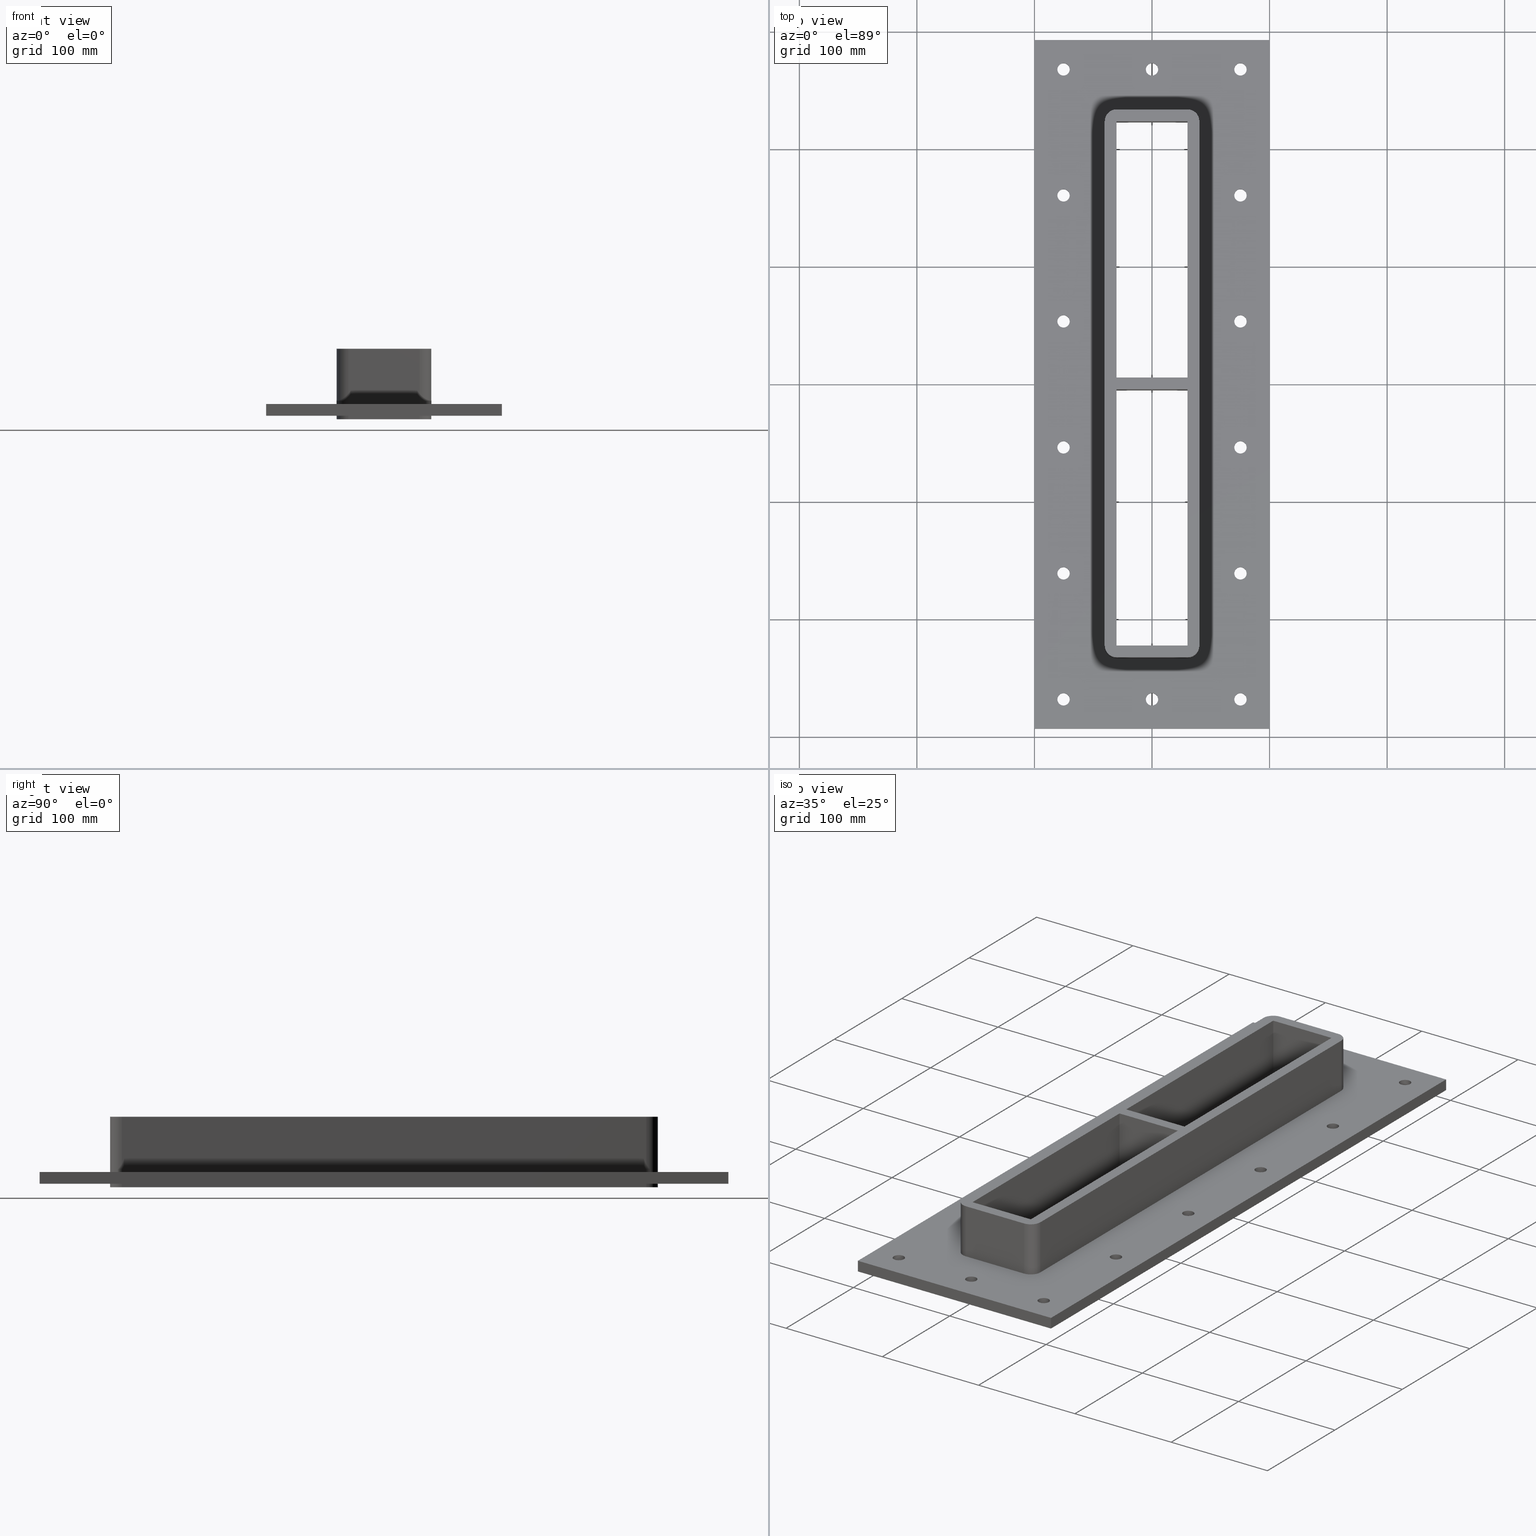
[diagram: canonical four-view strip — front | top / right | iso, engineering-drawing reading convention]
A machine part, canonical four-view strip (front | top / right | iso — engineering-drawing reading convention). The complete STEP part file that produces these views, byte-faithful:
ISO-10303-21;
HEADER;
/****************************************************************
 * Generated by software with PDElib inside                    *
 * PDElib Version v51a, created Wed 11/30/2011                  *
 * ITI Transcendata (http://www.transcendata.com/)              *
 ****************************************************************/
FILE_DESCRIPTION((''),'2;1');
FILE_NAME('C:\\Users\\se-milkar\\Desktop\\SFHM GENERATOR\\File dump\\SFHM5+5X1.stp','2017-01-17T17:24:54',(''),(''),'Autodesk Inventor 2013','Autodesk Inventor 2013','');
FILE_SCHEMA(('AUTOMOTIVE_DESIGN { 1 0 10303 214 1 1 1 1 }'));
ENDSEC;
DATA;
#5=APPLICATION_CONTEXT('automotive design');
#6=APPLICATION_PROTOCOL_DEFINITION('International Standard','automotive_design',2001,#5);
#7=PRODUCT_CONTEXT('',#5,'mechanical');
#8=PRODUCT('RTD-FRAME GENERATOR SF-LABB','RTD-FRAME GENERATOR SF-LABB',$,(#7));
#9=PRODUCT_RELATED_PRODUCT_CATEGORY('part',$,(#8));
#10=PRODUCT_DEFINITION_FORMATION('',$,#8);
#11=PRODUCT_DEFINITION_CONTEXT('part definition',#5,'design');
#12=PRODUCT_DEFINITION('',$,#10,#11);
#18=(NAMED_UNIT(*)PLANE_ANGLE_UNIT()SI_UNIT($,.RADIAN.));
#19=DIMENSIONAL_EXPONENTS(0.0,0.0,0.0,0.0,0.0,0.0,0.0);
#20=PLANE_ANGLE_MEASURE_WITH_UNIT(PLANE_ANGLE_MEASURE(0.0174532925),#18);
#24=(CONVERSION_BASED_UNIT('DEGREE',#20)NAMED_UNIT(#19)PLANE_ANGLE_UNIT());
#28=(NAMED_UNIT(*)SI_UNIT($,.STERADIAN.)SOLID_ANGLE_UNIT());
#32=(LENGTH_UNIT()NAMED_UNIT(*)SI_UNIT(.MILLI.,.METRE.));
#34=UNCERTAINTY_MEASURE_WITH_UNIT(LENGTH_MEASURE(0.01),#32,'DISTANCE_ACCURACY_VALUE','');
#36=(GEOMETRIC_REPRESENTATION_CONTEXT(3)GLOBAL_UNCERTAINTY_ASSIGNED_CONTEXT((#34))GLOBAL_UNIT_ASSIGNED_CONTEXT((#24,#28,#32))REPRESENTATION_CONTEXT('None','None'));
#37=AXIS2_PLACEMENT_3D('',#38,#39,#40);
#38=CARTESIAN_POINT('',(0.0,0.0,0.0));
#39=DIRECTION('',(0.0,0.0,1.0));
#40=DIRECTION('',(1.0,0.0,0.0));
#41=SHAPE_REPRESENTATION('',(#37),#36);
#42=PRODUCT_DEFINITION_SHAPE('','',#12);
#43=SHAPE_DEFINITION_REPRESENTATION(#42,#41);
#49=(NAMED_UNIT(*)PLANE_ANGLE_UNIT()SI_UNIT($,.RADIAN.));
#50=DIMENSIONAL_EXPONENTS(0.0,0.0,0.0,0.0,0.0,0.0,0.0);
#51=PLANE_ANGLE_MEASURE_WITH_UNIT(PLANE_ANGLE_MEASURE(0.0174532925),#49);
#55=(CONVERSION_BASED_UNIT('DEGREE',#51)NAMED_UNIT(#50)PLANE_ANGLE_UNIT());
#59=(NAMED_UNIT(*)SI_UNIT($,.STERADIAN.)SOLID_ANGLE_UNIT());
#63=(LENGTH_UNIT()NAMED_UNIT(*)SI_UNIT(.MILLI.,.METRE.));
#65=UNCERTAINTY_MEASURE_WITH_UNIT(LENGTH_MEASURE(0.000001),#63,'DISTANCE_ACCURACY_VALUE','');
#67=(GEOMETRIC_REPRESENTATION_CONTEXT(3)GLOBAL_UNCERTAINTY_ASSIGNED_CONTEXT((#65))GLOBAL_UNIT_ASSIGNED_CONTEXT((#55,#59,#63))REPRESENTATION_CONTEXT('','3D'));
#68=CARTESIAN_POINT('',(6.217249E-014,-268.0,-639.25095419774175));
#69=DIRECTION('',(0.0,0.0,1.0));
#70=DIRECTION('',(1.0,0.0,0.0));
#71=AXIS2_PLACEMENT_3D('',#68,#69,#70);
#72=CYLINDRICAL_SURFACE('',#71,5.25);
#73=CARTESIAN_POINT('',(-5.249999999999941,-268.0,-27.000000000000028));
#74=VERTEX_POINT('',#73);
#75=CARTESIAN_POINT('',(6.217249E-014,-268.0,-27.000000000000028));
#76=DIRECTION('',(0.0,0.0,1.0));
#77=DIRECTION('',(1.0,0.0,0.0));
#78=AXIS2_PLACEMENT_3D('',#75,#76,#77);
#79=CIRCLE('',#78,5.25);
#80=EDGE_CURVE('',#74,#74,#79,.T.);
#81=ORIENTED_EDGE('',*,*,#80,.F.);
#82=EDGE_LOOP('',(#81));
#83=FACE_OUTER_BOUND('',#82,.T.);
#84=CARTESIAN_POINT('',(5.250000000000066,-268.0,-17.0));
#85=VERTEX_POINT('',#84);
#86=CARTESIAN_POINT('',(6.217249E-014,-268.0,-17.000000000000028));
#87=DIRECTION('',(0.0,0.0,-1.0));
#88=DIRECTION('',(1.0,0.0,0.0));
#89=AXIS2_PLACEMENT_3D('',#86,#87,#88);
#90=CIRCLE('',#89,5.25);
#91=EDGE_CURVE('',#85,#85,#90,.T.);
#92=ORIENTED_EDGE('',*,*,#91,.F.);
#93=EDGE_LOOP('',(#92));
#94=FACE_BOUND('',#93,.T.);
#95=ADVANCED_FACE('',(#83,#94),#72,.F.);
#96=CARTESIAN_POINT('',(-4.440892E-014,268.0,-639.25095419774175));
#97=DIRECTION('',(0.0,0.0,1.0));
#98=DIRECTION('',(1.0,0.0,0.0));
#99=AXIS2_PLACEMENT_3D('',#96,#97,#98);
#100=CYLINDRICAL_SURFACE('',#99,5.25);
#101=CARTESIAN_POINT('',(-5.250000000000039,268.0,-27.000000000000028));
#102=VERTEX_POINT('',#101);
#103=CARTESIAN_POINT('',(-4.440892E-014,268.0,-27.000000000000028));
#104=DIRECTION('',(0.0,0.0,1.0));
#105=DIRECTION('',(1.0,0.0,0.0));
#106=AXIS2_PLACEMENT_3D('',#103,#104,#105);
#107=CIRCLE('',#106,5.25);
#108=EDGE_CURVE('',#102,#102,#107,.T.);
#109=ORIENTED_EDGE('',*,*,#108,.F.);
#110=EDGE_LOOP('',(#109));
#111=FACE_OUTER_BOUND('',#110,.T.);
#112=CARTESIAN_POINT('',(5.249999999999959,268.0,-17.0));
#113=VERTEX_POINT('',#112);
#114=CARTESIAN_POINT('',(-4.440892E-014,268.0,-17.000000000000028));
#115=DIRECTION('',(0.0,0.0,-1.0));
#116=DIRECTION('',(1.0,0.0,0.0));
#117=AXIS2_PLACEMENT_3D('',#114,#115,#116);
#118=CIRCLE('',#117,5.25);
#119=EDGE_CURVE('',#113,#113,#118,.T.);
#120=ORIENTED_EDGE('',*,*,#119,.F.);
#121=EDGE_LOOP('',(#120));
#122=FACE_BOUND('',#121,.T.);
#123=ADVANCED_FACE('',(#111,#122),#100,.F.);
#124=CARTESIAN_POINT('',(75.250000000000028,-160.80000000000007,-639.25095419774175));
#125=DIRECTION('',(0.0,0.0,1.0));
#126=DIRECTION('',(1.0,0.0,0.0));
#127=AXIS2_PLACEMENT_3D('',#124,#125,#126);
#128=CYLINDRICAL_SURFACE('',#127,5.25);
#129=CARTESIAN_POINT('',(70.000000000000028,-160.80000000000007,-27.000000000000028));
#130=VERTEX_POINT('',#129);
#131=CARTESIAN_POINT('',(75.250000000000028,-160.80000000000007,-27.000000000000028));
#132=DIRECTION('',(0.0,0.0,1.0));
#133=DIRECTION('',(1.0,0.0,0.0));
#134=AXIS2_PLACEMENT_3D('',#131,#132,#133);
#135=CIRCLE('',#134,5.25);
#136=EDGE_CURVE('',#130,#130,#135,.T.);
#137=ORIENTED_EDGE('',*,*,#136,.F.);
#138=EDGE_LOOP('',(#137));
#139=FACE_OUTER_BOUND('',#138,.T.);
#140=CARTESIAN_POINT('',(80.500000000000043,-160.80000000000007,-17.0));
#141=VERTEX_POINT('',#140);
#142=CARTESIAN_POINT('',(75.250000000000028,-160.80000000000007,-17.000000000000028));
#143=DIRECTION('',(0.0,0.0,-1.0));
#144=DIRECTION('',(1.0,0.0,0.0));
#145=AXIS2_PLACEMENT_3D('',#142,#143,#144);
#146=CIRCLE('',#145,5.25);
#147=EDGE_CURVE('',#141,#141,#146,.T.);
#148=ORIENTED_EDGE('',*,*,#147,.F.);
#149=EDGE_LOOP('',(#148));
#150=FACE_BOUND('',#149,.T.);
#151=ADVANCED_FACE('',(#139,#150),#128,.F.);
#152=CARTESIAN_POINT('',(75.250000000000028,-53.600000000000051,-639.25095419774175));
#153=DIRECTION('',(0.0,0.0,1.0));
#154=DIRECTION('',(1.0,0.0,0.0));
#155=AXIS2_PLACEMENT_3D('',#152,#153,#154);
#156=CYLINDRICAL_SURFACE('',#155,5.25);
#157=CARTESIAN_POINT('',(70.000000000000014,-53.600000000000051,-27.000000000000028));
#158=VERTEX_POINT('',#157);
#159=CARTESIAN_POINT('',(75.250000000000028,-53.600000000000051,-27.000000000000028));
#160=DIRECTION('',(0.0,0.0,1.0));
#161=DIRECTION('',(1.0,0.0,0.0));
#162=AXIS2_PLACEMENT_3D('',#159,#160,#161);
#163=CIRCLE('',#162,5.25);
#164=EDGE_CURVE('',#158,#158,#163,.T.);
#165=ORIENTED_EDGE('',*,*,#164,.F.);
#166=EDGE_LOOP('',(#165));
#167=FACE_OUTER_BOUND('',#166,.T.);
#168=CARTESIAN_POINT('',(80.500000000000028,-53.600000000000051,-17.0));
#169=VERTEX_POINT('',#168);
#170=CARTESIAN_POINT('',(75.250000000000028,-53.600000000000051,-17.000000000000028));
#171=DIRECTION('',(0.0,0.0,-1.0));
#172=DIRECTION('',(1.0,0.0,0.0));
#173=AXIS2_PLACEMENT_3D('',#170,#171,#172);
#174=CIRCLE('',#173,5.25);
#175=EDGE_CURVE('',#169,#169,#174,.T.);
#176=ORIENTED_EDGE('',*,*,#175,.F.);
#177=EDGE_LOOP('',(#176));
#178=FACE_BOUND('',#177,.T.);
#179=ADVANCED_FACE('',(#167,#178),#156,.F.);
#180=CARTESIAN_POINT('',(75.25,53.59999999999998,-639.25095419774175));
#181=DIRECTION('',(0.0,0.0,1.0));
#182=DIRECTION('',(1.0,0.0,0.0));
#183=AXIS2_PLACEMENT_3D('',#180,#181,#182);
#184=CYLINDRICAL_SURFACE('',#183,5.25);
#185=CARTESIAN_POINT('',(70.0,53.59999999999998,-27.000000000000028));
#186=VERTEX_POINT('',#185);
#187=CARTESIAN_POINT('',(75.25,53.59999999999998,-27.000000000000028));
#188=DIRECTION('',(0.0,0.0,1.0));
#189=DIRECTION('',(1.0,0.0,0.0));
#190=AXIS2_PLACEMENT_3D('',#187,#188,#189);
#191=CIRCLE('',#190,5.25);
#192=EDGE_CURVE('',#186,#186,#191,.T.);
#193=ORIENTED_EDGE('',*,*,#192,.F.);
#194=EDGE_LOOP('',(#193));
#195=FACE_OUTER_BOUND('',#194,.T.);
#196=CARTESIAN_POINT('',(80.5,53.59999999999998,-17.0));
#197=VERTEX_POINT('',#196);
#198=CARTESIAN_POINT('',(75.25,53.59999999999998,-17.000000000000028));
#199=DIRECTION('',(0.0,0.0,-1.0));
#200=DIRECTION('',(1.0,0.0,0.0));
#201=AXIS2_PLACEMENT_3D('',#198,#199,#200);
#202=CIRCLE('',#201,5.25);
#203=EDGE_CURVE('',#197,#197,#202,.T.);
#204=ORIENTED_EDGE('',*,*,#203,.F.);
#205=EDGE_LOOP('',(#204));
#206=FACE_BOUND('',#205,.T.);
#207=ADVANCED_FACE('',(#195,#206),#184,.F.);
#208=CARTESIAN_POINT('',(75.249999999999986,160.79999999999998,-639.25095419774175));
#209=DIRECTION('',(0.0,0.0,1.0));
#210=DIRECTION('',(1.0,0.0,0.0));
#211=AXIS2_PLACEMENT_3D('',#208,#209,#210);
#212=CYLINDRICAL_SURFACE('',#211,5.25);
#213=CARTESIAN_POINT('',(69.999999999999986,160.79999999999998,-27.000000000000028));
#214=VERTEX_POINT('',#213);
#215=CARTESIAN_POINT('',(75.249999999999986,160.79999999999998,-27.000000000000028));
#216=DIRECTION('',(0.0,0.0,1.0));
#217=DIRECTION('',(1.0,0.0,0.0));
#218=AXIS2_PLACEMENT_3D('',#215,#216,#217);
#219=CIRCLE('',#218,5.25);
#220=EDGE_CURVE('',#214,#214,#219,.T.);
#221=ORIENTED_EDGE('',*,*,#220,.F.);
#222=EDGE_LOOP('',(#221));
#223=FACE_OUTER_BOUND('',#222,.T.);
#224=CARTESIAN_POINT('',(80.499999999999986,160.79999999999998,-17.0));
#225=VERTEX_POINT('',#224);
#226=CARTESIAN_POINT('',(75.249999999999986,160.79999999999998,-17.000000000000028));
#227=DIRECTION('',(0.0,0.0,-1.0));
#228=DIRECTION('',(1.0,0.0,0.0));
#229=AXIS2_PLACEMENT_3D('',#226,#227,#228);
#230=CIRCLE('',#229,5.25);
#231=EDGE_CURVE('',#225,#225,#230,.T.);
#232=ORIENTED_EDGE('',*,*,#231,.F.);
#233=EDGE_LOOP('',(#232));
#234=FACE_BOUND('',#233,.T.);
#235=ADVANCED_FACE('',(#223,#234),#212,.F.);
#236=CARTESIAN_POINT('',(-75.250000000000043,160.80000000000007,-639.25095419774175));
#237=DIRECTION('',(0.0,0.0,1.0));
#238=DIRECTION('',(1.0,0.0,0.0));
#239=AXIS2_PLACEMENT_3D('',#236,#237,#238);
#240=CYLINDRICAL_SURFACE('',#239,5.25);
#241=CARTESIAN_POINT('',(-80.500000000000028,160.80000000000007,-27.000000000000028));
#242=VERTEX_POINT('',#241);
#243=CARTESIAN_POINT('',(-75.250000000000043,160.80000000000007,-27.000000000000028));
#244=DIRECTION('',(0.0,0.0,1.0));
#245=DIRECTION('',(1.0,0.0,0.0));
#246=AXIS2_PLACEMENT_3D('',#243,#244,#245);
#247=CIRCLE('',#246,5.25);
#248=EDGE_CURVE('',#242,#242,#247,.T.);
#249=ORIENTED_EDGE('',*,*,#248,.F.);
#250=EDGE_LOOP('',(#249));
#251=FACE_OUTER_BOUND('',#250,.T.);
#252=CARTESIAN_POINT('',(-70.000000000000028,160.80000000000007,-17.0));
#253=VERTEX_POINT('',#252);
#254=CARTESIAN_POINT('',(-75.250000000000043,160.80000000000007,-17.000000000000028));
#255=DIRECTION('',(0.0,0.0,-1.0));
#256=DIRECTION('',(1.0,0.0,0.0));
#257=AXIS2_PLACEMENT_3D('',#254,#255,#256);
#258=CIRCLE('',#257,5.25);
#259=EDGE_CURVE('',#253,#253,#258,.T.);
#260=ORIENTED_EDGE('',*,*,#259,.F.);
#261=EDGE_LOOP('',(#260));
#262=FACE_BOUND('',#261,.T.);
#263=ADVANCED_FACE('',(#251,#262),#240,.F.);
#264=CARTESIAN_POINT('',(-75.250000000000014,53.600000000000051,-639.25095419774175));
#265=DIRECTION('',(0.0,0.0,1.0));
#266=DIRECTION('',(1.0,0.0,0.0));
#267=AXIS2_PLACEMENT_3D('',#264,#265,#266);
#268=CYLINDRICAL_SURFACE('',#267,5.25);
#269=CARTESIAN_POINT('',(-80.5,53.600000000000051,-27.000000000000028));
#270=VERTEX_POINT('',#269);
#271=CARTESIAN_POINT('',(-75.250000000000014,53.600000000000051,-27.000000000000028));
#272=DIRECTION('',(0.0,0.0,1.0));
#273=DIRECTION('',(1.0,0.0,0.0));
#274=AXIS2_PLACEMENT_3D('',#271,#272,#273);
#275=CIRCLE('',#274,5.25);
#276=EDGE_CURVE('',#270,#270,#275,.T.);
#277=ORIENTED_EDGE('',*,*,#276,.F.);
#278=EDGE_LOOP('',(#277));
#279=FACE_OUTER_BOUND('',#278,.T.);
#280=CARTESIAN_POINT('',(-70.000000000000014,53.600000000000051,-17.0));
#281=VERTEX_POINT('',#280);
#282=CARTESIAN_POINT('',(-75.250000000000014,53.600000000000051,-17.000000000000028));
#283=DIRECTION('',(0.0,0.0,-1.0));
#284=DIRECTION('',(1.0,0.0,0.0));
#285=AXIS2_PLACEMENT_3D('',#282,#283,#284);
#286=CIRCLE('',#285,5.25);
#287=EDGE_CURVE('',#281,#281,#286,.T.);
#288=ORIENTED_EDGE('',*,*,#287,.F.);
#289=EDGE_LOOP('',(#288));
#290=FACE_BOUND('',#289,.T.);
#291=ADVANCED_FACE('',(#279,#290),#268,.F.);
#292=CARTESIAN_POINT('',(-75.25,-53.59999999999998,-639.25095419774175));
#293=DIRECTION('',(0.0,0.0,1.0));
#294=DIRECTION('',(1.0,0.0,0.0));
#295=AXIS2_PLACEMENT_3D('',#292,#293,#294);
#296=CYLINDRICAL_SURFACE('',#295,5.25);
#297=CARTESIAN_POINT('',(-80.499999999999986,-53.59999999999998,-27.000000000000028));
#298=VERTEX_POINT('',#297);
#299=CARTESIAN_POINT('',(-75.25,-53.59999999999998,-27.000000000000028));
#300=DIRECTION('',(0.0,0.0,1.0));
#301=DIRECTION('',(1.0,0.0,0.0));
#302=AXIS2_PLACEMENT_3D('',#299,#300,#301);
#303=CIRCLE('',#302,5.25);
#304=EDGE_CURVE('',#298,#298,#303,.T.);
#305=ORIENTED_EDGE('',*,*,#304,.F.);
#306=EDGE_LOOP('',(#305));
#307=FACE_OUTER_BOUND('',#306,.T.);
#308=CARTESIAN_POINT('',(-69.999999999999986,-53.59999999999998,-17.0));
#309=VERTEX_POINT('',#308);
#310=CARTESIAN_POINT('',(-75.25,-53.59999999999998,-17.000000000000028));
#311=DIRECTION('',(0.0,0.0,-1.0));
#312=DIRECTION('',(1.0,0.0,0.0));
#313=AXIS2_PLACEMENT_3D('',#310,#311,#312);
#314=CIRCLE('',#313,5.25);
#315=EDGE_CURVE('',#309,#309,#314,.T.);
#316=ORIENTED_EDGE('',*,*,#315,.F.);
#317=EDGE_LOOP('',(#316));
#318=FACE_BOUND('',#317,.T.);
#319=ADVANCED_FACE('',(#307,#318),#296,.F.);
#320=CARTESIAN_POINT('',(-75.249999999999972,-160.79999999999998,-639.25095419774175));
#321=DIRECTION('',(0.0,0.0,1.0));
#322=DIRECTION('',(1.0,0.0,0.0));
#323=AXIS2_PLACEMENT_3D('',#320,#321,#322);
#324=CYLINDRICAL_SURFACE('',#323,5.25);
#325=CARTESIAN_POINT('',(-80.499999999999972,-160.79999999999998,-27.000000000000028));
#326=VERTEX_POINT('',#325);
#327=CARTESIAN_POINT('',(-75.249999999999972,-160.79999999999998,-27.000000000000028));
#328=DIRECTION('',(0.0,0.0,1.0));
#329=DIRECTION('',(1.0,0.0,0.0));
#330=AXIS2_PLACEMENT_3D('',#327,#328,#329);
#331=CIRCLE('',#330,5.25);
#332=EDGE_CURVE('',#326,#326,#331,.T.);
#333=ORIENTED_EDGE('',*,*,#332,.F.);
#334=EDGE_LOOP('',(#333));
#335=FACE_OUTER_BOUND('',#334,.T.);
#336=CARTESIAN_POINT('',(-69.999999999999972,-160.79999999999998,-17.0));
#337=VERTEX_POINT('',#336);
#338=CARTESIAN_POINT('',(-75.249999999999972,-160.79999999999998,-17.000000000000028));
#339=DIRECTION('',(0.0,0.0,-1.0));
#340=DIRECTION('',(1.0,0.0,0.0));
#341=AXIS2_PLACEMENT_3D('',#338,#339,#340);
#342=CIRCLE('',#341,5.25);
#343=EDGE_CURVE('',#337,#337,#342,.T.);
#344=ORIENTED_EDGE('',*,*,#343,.F.);
#345=EDGE_LOOP('',(#344));
#346=FACE_BOUND('',#345,.T.);
#347=ADVANCED_FACE('',(#335,#346),#324,.F.);
#348=CARTESIAN_POINT('',(-75.250000000000043,268.0,-639.25095419774175));
#349=DIRECTION('',(0.0,0.0,1.0));
#350=DIRECTION('',(1.0,0.0,0.0));
#351=AXIS2_PLACEMENT_3D('',#348,#349,#350);
#352=CYLINDRICAL_SURFACE('',#351,5.25);
#353=CARTESIAN_POINT('',(-80.500000000000043,268.0,-27.000000000000028));
#354=VERTEX_POINT('',#353);
#355=CARTESIAN_POINT('',(-75.250000000000043,268.0,-27.000000000000028));
#356=DIRECTION('',(0.0,0.0,1.0));
#357=DIRECTION('',(1.0,0.0,0.0));
#358=AXIS2_PLACEMENT_3D('',#355,#356,#357);
#359=CIRCLE('',#358,5.25);
#360=EDGE_CURVE('',#354,#354,#359,.T.);
#361=ORIENTED_EDGE('',*,*,#360,.F.);
#362=EDGE_LOOP('',(#361));
#363=FACE_OUTER_BOUND('',#362,.T.);
#364=CARTESIAN_POINT('',(-70.000000000000043,268.0,-17.0));
#365=VERTEX_POINT('',#364);
#366=CARTESIAN_POINT('',(-75.250000000000043,268.0,-17.000000000000028));
#367=DIRECTION('',(0.0,0.0,-1.0));
#368=DIRECTION('',(1.0,0.0,0.0));
#369=AXIS2_PLACEMENT_3D('',#366,#367,#368);
#370=CIRCLE('',#369,5.25);
#371=EDGE_CURVE('',#365,#365,#370,.T.);
#372=ORIENTED_EDGE('',*,*,#371,.F.);
#373=EDGE_LOOP('',(#372));
#374=FACE_BOUND('',#373,.T.);
#375=ADVANCED_FACE('',(#363,#374),#352,.F.);
#376=CARTESIAN_POINT('',(75.249999999999972,268.0,-639.25095419774175));
#377=DIRECTION('',(0.0,0.0,1.0));
#378=DIRECTION('',(1.0,0.0,0.0));
#379=AXIS2_PLACEMENT_3D('',#376,#377,#378);
#380=CYLINDRICAL_SURFACE('',#379,5.25);
#381=CARTESIAN_POINT('',(69.999999999999972,268.0,-27.000000000000028));
#382=VERTEX_POINT('',#381);
#383=CARTESIAN_POINT('',(75.249999999999972,268.0,-27.000000000000028));
#384=DIRECTION('',(0.0,0.0,1.0));
#385=DIRECTION('',(1.0,0.0,0.0));
#386=AXIS2_PLACEMENT_3D('',#383,#384,#385);
#387=CIRCLE('',#386,5.25);
#388=EDGE_CURVE('',#382,#382,#387,.T.);
#389=ORIENTED_EDGE('',*,*,#388,.F.);
#390=EDGE_LOOP('',(#389));
#391=FACE_OUTER_BOUND('',#390,.T.);
#392=CARTESIAN_POINT('',(80.499999999999972,268.0,-17.0));
#393=VERTEX_POINT('',#392);
#394=CARTESIAN_POINT('',(75.249999999999972,268.0,-17.000000000000028));
#395=DIRECTION('',(0.0,0.0,-1.0));
#396=DIRECTION('',(1.0,0.0,0.0));
#397=AXIS2_PLACEMENT_3D('',#394,#395,#396);
#398=CIRCLE('',#397,5.25);
#399=EDGE_CURVE('',#393,#393,#398,.T.);
#400=ORIENTED_EDGE('',*,*,#399,.F.);
#401=EDGE_LOOP('',(#400));
#402=FACE_BOUND('',#401,.T.);
#403=ADVANCED_FACE('',(#391,#402),#380,.F.);
#404=CARTESIAN_POINT('',(75.250000000000057,-268.0,-639.25095419774175));
#405=DIRECTION('',(0.0,0.0,1.0));
#406=DIRECTION('',(1.0,0.0,0.0));
#407=AXIS2_PLACEMENT_3D('',#404,#405,#406);
#408=CYLINDRICAL_SURFACE('',#407,5.25);
#409=CARTESIAN_POINT('',(70.000000000000057,-268.0,-27.000000000000028));
#410=VERTEX_POINT('',#409);
#411=CARTESIAN_POINT('',(75.250000000000057,-268.0,-27.000000000000028));
#412=DIRECTION('',(0.0,0.0,1.0));
#413=DIRECTION('',(1.0,0.0,0.0));
#414=AXIS2_PLACEMENT_3D('',#411,#412,#413);
#415=CIRCLE('',#414,5.25);
#416=EDGE_CURVE('',#410,#410,#415,.T.);
#417=ORIENTED_EDGE('',*,*,#416,.F.);
#418=EDGE_LOOP('',(#417));
#419=FACE_OUTER_BOUND('',#418,.T.);
#420=CARTESIAN_POINT('',(80.500000000000057,-268.0,-17.0));
#421=VERTEX_POINT('',#420);
#422=CARTESIAN_POINT('',(75.250000000000057,-268.0,-17.000000000000028));
#423=DIRECTION('',(0.0,0.0,-1.0));
#424=DIRECTION('',(1.0,0.0,0.0));
#425=AXIS2_PLACEMENT_3D('',#422,#423,#424);
#426=CIRCLE('',#425,5.25);
#427=EDGE_CURVE('',#421,#421,#426,.T.);
#428=ORIENTED_EDGE('',*,*,#427,.F.);
#429=EDGE_LOOP('',(#428));
#430=FACE_BOUND('',#429,.T.);
#431=ADVANCED_FACE('',(#419,#430),#408,.F.);
#432=CARTESIAN_POINT('',(-75.249999999999957,-268.0,-639.25095419774175));
#433=DIRECTION('',(0.0,0.0,1.0));
#434=DIRECTION('',(1.0,0.0,0.0));
#435=AXIS2_PLACEMENT_3D('',#432,#433,#434);
#436=CYLINDRICAL_SURFACE('',#435,5.25);
#437=CARTESIAN_POINT('',(-80.499999999999957,-268.0,-27.000000000000028));
#438=VERTEX_POINT('',#437);
#439=CARTESIAN_POINT('',(-75.249999999999957,-268.0,-27.000000000000028));
#440=DIRECTION('',(0.0,0.0,1.0));
#441=DIRECTION('',(1.0,0.0,0.0));
#442=AXIS2_PLACEMENT_3D('',#439,#440,#441);
#443=CIRCLE('',#442,5.25);
#444=EDGE_CURVE('',#438,#438,#443,.T.);
#445=ORIENTED_EDGE('',*,*,#444,.F.);
#446=EDGE_LOOP('',(#445));
#447=FACE_OUTER_BOUND('',#446,.T.);
#448=CARTESIAN_POINT('',(-69.999999999999957,-268.0,-17.0));
#449=VERTEX_POINT('',#448);
#450=CARTESIAN_POINT('',(-75.249999999999957,-268.0,-17.000000000000028));
#451=DIRECTION('',(0.0,0.0,-1.0));
#452=DIRECTION('',(1.0,0.0,0.0));
#453=AXIS2_PLACEMENT_3D('',#450,#451,#452);
#454=CIRCLE('',#453,5.25);
#455=EDGE_CURVE('',#449,#449,#454,.T.);
#456=ORIENTED_EDGE('',*,*,#455,.F.);
#457=EDGE_LOOP('',(#456));
#458=FACE_BOUND('',#457,.T.);
#459=ADVANCED_FACE('',(#447,#458),#436,.F.);
#460=CARTESIAN_POINT('',(-100.25000000000004,293.0,-27.0));
#461=DIRECTION('',(-1.0,0.0,0.0));
#462=DIRECTION('',(0.0,-1.0,0.0));
#463=AXIS2_PLACEMENT_3D('',#460,#461,#462);
#464=PLANE('',#463);
#465=CARTESIAN_POINT('',(-100.24999999999994,-293.0,-27.0));
#466=VERTEX_POINT('',#465);
#467=CARTESIAN_POINT('',(-100.25000000000004,293.0,-27.0));
#468=VERTEX_POINT('',#467);
#469=CARTESIAN_POINT('',(-100.24999999999994,-293.0,-27.0));
#470=DIRECTION('',(0.0,1.0,0.0));
#471=VECTOR('',#470,586.0);
#472=LINE('',#469,#471);
#473=EDGE_CURVE('',#466,#468,#472,.T.);
#474=ORIENTED_EDGE('',*,*,#473,.F.);
#475=CARTESIAN_POINT('',(-100.24999999999994,-293.0,-17.0));
#476=VERTEX_POINT('',#475);
#477=CARTESIAN_POINT('',(-100.24999999999994,-293.0,-27.0));
#478=DIRECTION('',(0.0,0.0,1.0));
#479=VECTOR('',#478,10.0);
#480=LINE('',#477,#479);
#481=EDGE_CURVE('',#466,#476,#480,.T.);
#482=ORIENTED_EDGE('',*,*,#481,.T.);
#483=CARTESIAN_POINT('',(-100.25000000000006,293.0,-17.0));
#484=VERTEX_POINT('',#483);
#485=CARTESIAN_POINT('',(-100.25000000000003,293.0,-17.0));
#486=DIRECTION('',(0.0,-1.0,0.0));
#487=VECTOR('',#486,586.0);
#488=LINE('',#485,#487);
#489=EDGE_CURVE('',#484,#476,#488,.T.);
#490=ORIENTED_EDGE('',*,*,#489,.F.);
#491=CARTESIAN_POINT('',(-100.25000000000004,293.0,-27.0));
#492=DIRECTION('',(0.0,0.0,1.0));
#493=VECTOR('',#492,10.0);
#494=LINE('',#491,#493);
#495=EDGE_CURVE('',#468,#484,#494,.T.);
#496=ORIENTED_EDGE('',*,*,#495,.F.);
#497=EDGE_LOOP('',(#474,#482,#490,#496));
#498=FACE_OUTER_BOUND('',#497,.T.);
#499=ADVANCED_FACE('',(#498),#464,.T.);
#500=CARTESIAN_POINT('',(100.24999999999997,293.0,-27.0));
#501=DIRECTION('',(0.0,1.0,0.0));
#502=DIRECTION('',(-1.0,0.0,0.0));
#503=AXIS2_PLACEMENT_3D('',#500,#501,#502);
#504=PLANE('',#503);
#505=CARTESIAN_POINT('',(100.24999999999997,293.0,-27.0));
#506=VERTEX_POINT('',#505);
#507=CARTESIAN_POINT('',(-100.25000000000004,293.0,-27.0));
#508=DIRECTION('',(1.0,0.0,0.0));
#509=VECTOR('',#508,200.5);
#510=LINE('',#507,#509);
#511=EDGE_CURVE('',#468,#506,#510,.T.);
#512=ORIENTED_EDGE('',*,*,#511,.F.);
#513=ORIENTED_EDGE('',*,*,#495,.T.);
#514=CARTESIAN_POINT('',(100.24999999999997,293.0,-17.0));
#515=VERTEX_POINT('',#514);
#516=CARTESIAN_POINT('',(100.24999999999996,293.0,-17.0));
#517=DIRECTION('',(-1.0,0.0,0.0));
#518=VECTOR('',#517,200.5);
#519=LINE('',#516,#518);
#520=EDGE_CURVE('',#515,#484,#519,.T.);
#521=ORIENTED_EDGE('',*,*,#520,.F.);
#522=CARTESIAN_POINT('',(100.24999999999997,293.0,-27.0));
#523=DIRECTION('',(0.0,0.0,1.0));
#524=VECTOR('',#523,10.0);
#525=LINE('',#522,#524);
#526=EDGE_CURVE('',#506,#515,#525,.T.);
#527=ORIENTED_EDGE('',*,*,#526,.F.);
#528=EDGE_LOOP('',(#512,#513,#521,#527));
#529=FACE_OUTER_BOUND('',#528,.T.);
#530=ADVANCED_FACE('',(#529),#504,.T.);
#531=CARTESIAN_POINT('',(100.25000000000006,-293.0,-27.0));
#532=DIRECTION('',(1.0,0.0,0.0));
#533=DIRECTION('',(0.0,1.0,0.0));
#534=AXIS2_PLACEMENT_3D('',#531,#532,#533);
#535=PLANE('',#534);
#536=CARTESIAN_POINT('',(100.25000000000006,-293.0,-27.0));
#537=VERTEX_POINT('',#536);
#538=CARTESIAN_POINT('',(100.24999999999997,293.0,-27.0));
#539=DIRECTION('',(0.0,-1.0,0.0));
#540=VECTOR('',#539,586.0);
#541=LINE('',#538,#540);
#542=EDGE_CURVE('',#506,#537,#541,.T.);
#543=ORIENTED_EDGE('',*,*,#542,.F.);
#544=ORIENTED_EDGE('',*,*,#526,.T.);
#545=CARTESIAN_POINT('',(100.25000000000006,-293.0,-17.0));
#546=VERTEX_POINT('',#545);
#547=CARTESIAN_POINT('',(100.25000000000006,-293.0,-17.0));
#548=DIRECTION('',(0.0,1.0,0.0));
#549=VECTOR('',#548,586.0);
#550=LINE('',#547,#549);
#551=EDGE_CURVE('',#546,#515,#550,.T.);
#552=ORIENTED_EDGE('',*,*,#551,.F.);
#553=CARTESIAN_POINT('',(100.25000000000006,-293.0,-27.0));
#554=DIRECTION('',(0.0,0.0,1.0));
#555=VECTOR('',#554,10.0);
#556=LINE('',#553,#555);
#557=EDGE_CURVE('',#537,#546,#556,.T.);
#558=ORIENTED_EDGE('',*,*,#557,.F.);
#559=EDGE_LOOP('',(#543,#544,#552,#558));
#560=FACE_OUTER_BOUND('',#559,.T.);
#561=ADVANCED_FACE('',(#560),#535,.T.);
#562=CARTESIAN_POINT('',(-100.24999999999994,-293.0,-27.0));
#563=DIRECTION('',(0.0,-1.0,0.0));
#564=DIRECTION('',(1.0,0.0,0.0));
#565=AXIS2_PLACEMENT_3D('',#562,#563,#564);
#566=PLANE('',#565);
#567=CARTESIAN_POINT('',(100.25000000000006,-293.0,-27.0));
#568=DIRECTION('',(-1.0,0.0,0.0));
#569=VECTOR('',#568,200.5);
#570=LINE('',#567,#569);
#571=EDGE_CURVE('',#537,#466,#570,.T.);
#572=ORIENTED_EDGE('',*,*,#571,.F.);
#573=ORIENTED_EDGE('',*,*,#557,.T.);
#574=CARTESIAN_POINT('',(-100.24999999999994,-293.0,-17.0));
#575=DIRECTION('',(1.0,0.0,0.0));
#576=VECTOR('',#575,200.5);
#577=LINE('',#574,#576);
#578=EDGE_CURVE('',#476,#546,#577,.T.);
#579=ORIENTED_EDGE('',*,*,#578,.F.);
#580=ORIENTED_EDGE('',*,*,#481,.F.);
#581=EDGE_LOOP('',(#572,#573,#579,#580));
#582=FACE_OUTER_BOUND('',#581,.T.);
#583=ADVANCED_FACE('',(#582),#566,.T.);
#584=CARTESIAN_POINT('',(1.626163E-014,0.0,-17.0));
#585=DIRECTION('',(0.0,0.0,1.0));
#586=DIRECTION('',(1.0,0.0,0.0));
#587=AXIS2_PLACEMENT_3D('',#584,#585,#586);
#588=PLANE('',#587);
#589=ORIENTED_EDGE('',*,*,#578,.T.);
#590=ORIENTED_EDGE('',*,*,#551,.T.);
#591=ORIENTED_EDGE('',*,*,#520,.T.);
#592=ORIENTED_EDGE('',*,*,#489,.T.);
#593=EDGE_LOOP('',(#589,#590,#591,#592));
#594=FACE_OUTER_BOUND('',#593,.T.);
#595=ORIENTED_EDGE('',*,*,#91,.T.);
#596=EDGE_LOOP('',(#595));
#597=FACE_BOUND('',#596,.T.);
#598=ORIENTED_EDGE('',*,*,#119,.T.);
#599=EDGE_LOOP('',(#598));
#600=FACE_BOUND('',#599,.T.);
#601=ORIENTED_EDGE('',*,*,#147,.T.);
#602=EDGE_LOOP('',(#601));
#603=FACE_BOUND('',#602,.T.);
#604=ORIENTED_EDGE('',*,*,#175,.T.);
#605=EDGE_LOOP('',(#604));
#606=FACE_BOUND('',#605,.T.);
#607=ORIENTED_EDGE('',*,*,#203,.T.);
#608=EDGE_LOOP('',(#607));
#609=FACE_BOUND('',#608,.T.);
#610=ORIENTED_EDGE('',*,*,#231,.T.);
#611=EDGE_LOOP('',(#610));
#612=FACE_BOUND('',#611,.T.);
#613=ORIENTED_EDGE('',*,*,#259,.T.);
#614=EDGE_LOOP('',(#613));
#615=FACE_BOUND('',#614,.T.);
#616=ORIENTED_EDGE('',*,*,#287,.T.);
#617=EDGE_LOOP('',(#616));
#618=FACE_BOUND('',#617,.T.);
#619=ORIENTED_EDGE('',*,*,#315,.T.);
#620=EDGE_LOOP('',(#619));
#621=FACE_BOUND('',#620,.T.);
#622=ORIENTED_EDGE('',*,*,#343,.T.);
#623=EDGE_LOOP('',(#622));
#624=FACE_BOUND('',#623,.T.);
#625=ORIENTED_EDGE('',*,*,#371,.T.);
#626=EDGE_LOOP('',(#625));
#627=FACE_BOUND('',#626,.T.);
#628=ORIENTED_EDGE('',*,*,#399,.T.);
#629=EDGE_LOOP('',(#628));
#630=FACE_BOUND('',#629,.T.);
#631=ORIENTED_EDGE('',*,*,#427,.T.);
#632=EDGE_LOOP('',(#631));
#633=FACE_BOUND('',#632,.T.);
#634=ORIENTED_EDGE('',*,*,#455,.T.);
#635=EDGE_LOOP('',(#634));
#636=FACE_BOUND('',#635,.T.);
#637=CARTESIAN_POINT('',(40.249999999999972,223.0,-17.0));
#638=VERTEX_POINT('',#637);
#639=CARTESIAN_POINT('',(30.249999999999982,233.00000000000006,-17.0));
#640=VERTEX_POINT('',#639);
#641=CARTESIAN_POINT('',(30.249999999999922,223.00000000000017,-17.0));
#642=DIRECTION('',(0.0,0.0,1.0));
#643=DIRECTION('',(0.707106781186547,0.707106781186547,0.0));
#644=AXIS2_PLACEMENT_3D('',#641,#642,#643);
#645=CIRCLE('',#644,9.999999999999998);
#646=EDGE_CURVE('',#638,#640,#645,.T.);
#647=ORIENTED_EDGE('',*,*,#646,.F.);
#648=CARTESIAN_POINT('',(40.250000000000057,-223.00000000000006,-17.0));
#649=VERTEX_POINT('',#648);
#650=CARTESIAN_POINT('',(40.250000000000021,-223.00000000000006,-17.0));
#651=DIRECTION('',(0.0,1.0,0.0));
#652=VECTOR('',#651,446.0);
#653=LINE('',#650,#652);
#654=EDGE_CURVE('',#649,#638,#653,.T.);
#655=ORIENTED_EDGE('',*,*,#654,.F.);
#656=CARTESIAN_POINT('',(30.250000000000043,-232.99999999999997,-17.0));
#657=VERTEX_POINT('',#656);
#658=CARTESIAN_POINT('',(30.250000000000021,-222.99999999999983,-17.0));
#659=DIRECTION('',(0.0,0.0,1.0));
#660=DIRECTION('',(0.707106781186547,-0.707106781186547,0.0));
#661=AXIS2_PLACEMENT_3D('',#658,#659,#660);
#662=CIRCLE('',#661,9.999999999999998);
#663=EDGE_CURVE('',#657,#649,#662,.T.);
#664=ORIENTED_EDGE('',*,*,#663,.F.);
#665=CARTESIAN_POINT('',(-30.249999999999972,-233.00000000000006,-17.0));
#666=VERTEX_POINT('',#665);
#667=CARTESIAN_POINT('',(-30.249999999999972,-232.99999999999983,-17.0));
#668=DIRECTION('',(1.0,0.0,0.0));
#669=VECTOR('',#668,60.500000000000014);
#670=LINE('',#667,#669);
#671=EDGE_CURVE('',#666,#657,#670,.T.);
#672=ORIENTED_EDGE('',*,*,#671,.F.);
#673=CARTESIAN_POINT('',(-40.249999999999986,-223.00000000000006,-17.0));
#674=VERTEX_POINT('',#673);
#675=CARTESIAN_POINT('',(-30.249999999999947,-222.99999999999983,-17.0));
#676=DIRECTION('',(0.0,0.0,1.0));
#677=DIRECTION('',(-0.707106781186547,-0.707106781186548,0.0));
#678=AXIS2_PLACEMENT_3D('',#675,#676,#677);
#679=CIRCLE('',#678,9.999999999999998);
#680=EDGE_CURVE('',#674,#666,#679,.T.);
#681=ORIENTED_EDGE('',*,*,#680,.F.);
#682=CARTESIAN_POINT('',(-40.250000000000021,223.0,-17.0));
#683=VERTEX_POINT('',#682);
#684=CARTESIAN_POINT('',(-40.250000000000085,223.0,-17.0));
#685=DIRECTION('',(0.0,-1.0,0.0));
#686=VECTOR('',#685,446.00000000000006);
#687=LINE('',#684,#686);
#688=EDGE_CURVE('',#683,#674,#687,.T.);
#689=ORIENTED_EDGE('',*,*,#688,.F.);
#690=CARTESIAN_POINT('',(-30.250000000000036,233.00000000000006,-17.0));
#691=VERTEX_POINT('',#690);
#692=CARTESIAN_POINT('',(-30.250000000000075,223.00000000000017,-17.0));
#693=DIRECTION('',(0.0,0.0,1.0));
#694=DIRECTION('',(-0.707106781186548,0.707106781186547,0.0));
#695=AXIS2_PLACEMENT_3D('',#692,#693,#694);
#696=CIRCLE('',#695,10.0);
#697=EDGE_CURVE('',#691,#683,#696,.T.);
#698=ORIENTED_EDGE('',*,*,#697,.F.);
#699=CARTESIAN_POINT('',(30.249999999999982,233.00000000000017,-17.0));
#700=DIRECTION('',(-1.0,0.0,0.0));
#701=VECTOR('',#700,60.500000000000014);
#702=LINE('',#699,#701);
#703=EDGE_CURVE('',#640,#691,#702,.T.);
#704=ORIENTED_EDGE('',*,*,#703,.F.);
#705=EDGE_LOOP('',(#647,#655,#664,#672,#681,#689,#698,#704));
#706=FACE_BOUND('',#705,.T.);
#707=ADVANCED_FACE('',(#594,#597,#600,#603,#606,#609,#612,#615,#618,#621,#624,#627,#630,#633,#636,#706),#588,.T.);
#708=CARTESIAN_POINT('',(1.626163E-014,0.0,-27.0));
#709=DIRECTION('',(0.0,0.0,1.0));
#710=DIRECTION('',(1.0,0.0,0.0));
#711=AXIS2_PLACEMENT_3D('',#708,#709,#710);
#712=PLANE('',#711);
#713=ORIENTED_EDGE('',*,*,#571,.T.);
#714=ORIENTED_EDGE('',*,*,#473,.T.);
#715=ORIENTED_EDGE('',*,*,#511,.T.);
#716=ORIENTED_EDGE('',*,*,#542,.T.);
#717=EDGE_LOOP('',(#713,#714,#715,#716));
#718=FACE_OUTER_BOUND('',#717,.T.);
#719=ORIENTED_EDGE('',*,*,#80,.T.);
#720=EDGE_LOOP('',(#719));
#721=FACE_BOUND('',#720,.T.);
#722=ORIENTED_EDGE('',*,*,#108,.T.);
#723=EDGE_LOOP('',(#722));
#724=FACE_BOUND('',#723,.T.);
#725=ORIENTED_EDGE('',*,*,#136,.T.);
#726=EDGE_LOOP('',(#725));
#727=FACE_BOUND('',#726,.T.);
#728=ORIENTED_EDGE('',*,*,#164,.T.);
#729=EDGE_LOOP('',(#728));
#730=FACE_BOUND('',#729,.T.);
#731=ORIENTED_EDGE('',*,*,#192,.T.);
#732=EDGE_LOOP('',(#731));
#733=FACE_BOUND('',#732,.T.);
#734=ORIENTED_EDGE('',*,*,#220,.T.);
#735=EDGE_LOOP('',(#734));
#736=FACE_BOUND('',#735,.T.);
#737=ORIENTED_EDGE('',*,*,#248,.T.);
#738=EDGE_LOOP('',(#737));
#739=FACE_BOUND('',#738,.T.);
#740=ORIENTED_EDGE('',*,*,#276,.T.);
#741=EDGE_LOOP('',(#740));
#742=FACE_BOUND('',#741,.T.);
#743=ORIENTED_EDGE('',*,*,#304,.T.);
#744=EDGE_LOOP('',(#743));
#745=FACE_BOUND('',#744,.T.);
#746=ORIENTED_EDGE('',*,*,#332,.T.);
#747=EDGE_LOOP('',(#746));
#748=FACE_BOUND('',#747,.T.);
#749=ORIENTED_EDGE('',*,*,#360,.T.);
#750=EDGE_LOOP('',(#749));
#751=FACE_BOUND('',#750,.T.);
#752=ORIENTED_EDGE('',*,*,#388,.T.);
#753=EDGE_LOOP('',(#752));
#754=FACE_BOUND('',#753,.T.);
#755=ORIENTED_EDGE('',*,*,#416,.T.);
#756=EDGE_LOOP('',(#755));
#757=FACE_BOUND('',#756,.T.);
#758=ORIENTED_EDGE('',*,*,#444,.T.);
#759=EDGE_LOOP('',(#758));
#760=FACE_BOUND('',#759,.T.);
#761=CARTESIAN_POINT('',(30.249999999999982,233.00000000000006,-27.0));
#762=VERTEX_POINT('',#761);
#763=CARTESIAN_POINT('',(40.249999999999972,223.0,-27.0));
#764=VERTEX_POINT('',#763);
#765=CARTESIAN_POINT('',(30.249999999999922,223.00000000000017,-27.0));
#766=DIRECTION('',(0.0,0.0,-1.0));
#767=DIRECTION('',(0.707106781186547,0.707106781186547,0.0));
#768=AXIS2_PLACEMENT_3D('',#765,#766,#767);
#769=CIRCLE('',#768,9.999999999999998);
#770=EDGE_CURVE('',#762,#764,#769,.T.);
#771=ORIENTED_EDGE('',*,*,#770,.F.);
#772=CARTESIAN_POINT('',(-30.250000000000036,233.00000000000006,-27.0));
#773=VERTEX_POINT('',#772);
#774=CARTESIAN_POINT('',(-30.250000000000032,233.00000000000014,-27.0));
#775=DIRECTION('',(1.0,0.0,0.0));
#776=VECTOR('',#775,60.500000000000014);
#777=LINE('',#774,#776);
#778=EDGE_CURVE('',#773,#762,#777,.T.);
#779=ORIENTED_EDGE('',*,*,#778,.F.);
#780=CARTESIAN_POINT('',(-40.250000000000021,223.0,-27.0));
#781=VERTEX_POINT('',#780);
#782=CARTESIAN_POINT('',(-30.250000000000075,223.00000000000017,-27.0));
#783=DIRECTION('',(0.0,0.0,-1.0));
#784=DIRECTION('',(-0.707106781186548,0.707106781186547,0.0));
#785=AXIS2_PLACEMENT_3D('',#782,#783,#784);
#786=CIRCLE('',#785,10.0);
#787=EDGE_CURVE('',#781,#773,#786,.T.);
#788=ORIENTED_EDGE('',*,*,#787,.F.);
#789=CARTESIAN_POINT('',(-40.249999999999986,-223.0,-27.0));
#790=VERTEX_POINT('',#789);
#791=CARTESIAN_POINT('',(-40.249999999999943,-223.00000000000006,-27.0));
#792=DIRECTION('',(0.0,1.0,0.0));
#793=VECTOR('',#792,446.00000000000006);
#794=LINE('',#791,#793);
#795=EDGE_CURVE('',#790,#781,#794,.T.);
#796=ORIENTED_EDGE('',*,*,#795,.F.);
#797=CARTESIAN_POINT('',(-30.249999999999972,-233.00000000000006,-27.0));
#798=VERTEX_POINT('',#797);
#799=CARTESIAN_POINT('',(-30.249999999999947,-222.99999999999983,-27.0));
#800=DIRECTION('',(0.0,0.0,-1.0));
#801=DIRECTION('',(-0.707106781186547,-0.707106781186548,0.0));
#802=AXIS2_PLACEMENT_3D('',#799,#800,#801);
#803=CIRCLE('',#802,9.999999999999998);
#804=EDGE_CURVE('',#798,#790,#803,.T.);
#805=ORIENTED_EDGE('',*,*,#804,.F.);
#806=CARTESIAN_POINT('',(30.250000000000043,-232.99999999999997,-27.0));
#807=VERTEX_POINT('',#806);
#808=CARTESIAN_POINT('',(30.250000000000046,-232.99999999999983,-27.0));
#809=DIRECTION('',(-1.0,0.0,0.0));
#810=VECTOR('',#809,60.500000000000014);
#811=LINE('',#808,#810);
#812=EDGE_CURVE('',#807,#798,#811,.T.);
#813=ORIENTED_EDGE('',*,*,#812,.F.);
#814=CARTESIAN_POINT('',(40.250000000000057,-223.0,-27.0));
#815=VERTEX_POINT('',#814);
#816=CARTESIAN_POINT('',(30.250000000000021,-222.99999999999983,-27.0));
#817=DIRECTION('',(0.0,0.0,-1.0));
#818=DIRECTION('',(0.707106781186547,-0.707106781186547,0.0));
#819=AXIS2_PLACEMENT_3D('',#816,#817,#818);
#820=CIRCLE('',#819,9.999999999999998);
#821=EDGE_CURVE('',#815,#807,#820,.T.);
#822=ORIENTED_EDGE('',*,*,#821,.F.);
#823=CARTESIAN_POINT('',(40.249999999999929,222.99999999999997,-27.0));
#824=DIRECTION('',(0.0,-1.0,0.0));
#825=VECTOR('',#824,446.0);
#826=LINE('',#823,#825);
#827=EDGE_CURVE('',#764,#815,#826,.T.);
#828=ORIENTED_EDGE('',*,*,#827,.F.);
#829=EDGE_LOOP('',(#771,#779,#788,#796,#805,#813,#822,#828));
#830=FACE_BOUND('',#829,.T.);
#831=ADVANCED_FACE('',(#718,#721,#724,#727,#730,#733,#736,#739,#742,#745,#748,#751,#754,#757,#760,#830),#712,.F.);
#832=CARTESIAN_POINT('',(30.250000000000021,-222.99999999999983,0.0));
#833=DIRECTION('',(0.0,0.0,1.0));
#834=DIRECTION('',(0.707106781186547,-0.707106781186547,0.0));
#835=AXIS2_PLACEMENT_3D('',#832,#833,#834);
#836=CYLINDRICAL_SURFACE('',#835,10.0);
#837=ORIENTED_EDGE('',*,*,#821,.T.);
#838=CARTESIAN_POINT('',(30.250000000000021,-232.99999999999983,-30.0));
#839=VERTEX_POINT('',#838);
#840=CARTESIAN_POINT('',(30.250000000000021,-232.99999999999983,-27.0));
#841=DIRECTION('',(0.0,0.0,-1.0));
#842=VECTOR('',#841,3.0);
#843=LINE('',#840,#842);
#844=EDGE_CURVE('',#807,#839,#843,.T.);
#845=ORIENTED_EDGE('',*,*,#844,.T.);
#846=CARTESIAN_POINT('',(40.250000000000021,-222.99999999999983,-30.0));
#847=VERTEX_POINT('',#846);
#848=CARTESIAN_POINT('',(30.250000000000021,-222.99999999999983,-30.0));
#849=DIRECTION('',(0.0,0.0,1.0));
#850=DIRECTION('',(0.707106781186547,-0.707106781186547,0.0));
#851=AXIS2_PLACEMENT_3D('',#848,#849,#850);
#852=CIRCLE('',#851,9.999999999999998);
#853=EDGE_CURVE('',#839,#847,#852,.T.);
#854=ORIENTED_EDGE('',*,*,#853,.T.);
#855=CARTESIAN_POINT('',(40.250000000000021,-222.99999999999983,-30.0));
#856=DIRECTION('',(0.0,0.0,1.0));
#857=VECTOR('',#856,3.0);
#858=LINE('',#855,#857);
#859=EDGE_CURVE('',#847,#815,#858,.T.);
#860=ORIENTED_EDGE('',*,*,#859,.T.);
#861=EDGE_LOOP('',(#837,#845,#854,#860));
#862=FACE_OUTER_BOUND('',#861,.T.);
#863=ADVANCED_FACE('',(#862),#836,.T.);
#864=CARTESIAN_POINT('',(30.250000000000021,-222.99999999999983,0.0));
#865=DIRECTION('',(0.0,0.0,1.0));
#866=DIRECTION('',(0.707106781186547,-0.707106781186547,0.0));
#867=AXIS2_PLACEMENT_3D('',#864,#865,#866);
#868=CYLINDRICAL_SURFACE('',#867,10.0);
#869=ORIENTED_EDGE('',*,*,#663,.T.);
#870=CARTESIAN_POINT('',(40.250000000000021,-222.99999999999983,30.0));
#871=VERTEX_POINT('',#870);
#872=CARTESIAN_POINT('',(40.250000000000021,-222.99999999999983,-17.0));
#873=DIRECTION('',(0.0,0.0,1.0));
#874=VECTOR('',#873,47.0);
#875=LINE('',#872,#874);
#876=EDGE_CURVE('',#649,#871,#875,.T.);
#877=ORIENTED_EDGE('',*,*,#876,.T.);
#878=CARTESIAN_POINT('',(30.250000000000021,-232.99999999999983,30.0));
#879=VERTEX_POINT('',#878);
#880=CARTESIAN_POINT('',(30.250000000000021,-222.99999999999983,30.0));
#881=DIRECTION('',(0.0,0.0,-1.0));
#882=DIRECTION('',(0.707106781186547,-0.707106781186547,0.0));
#883=AXIS2_PLACEMENT_3D('',#880,#881,#882);
#884=CIRCLE('',#883,9.999999999999998);
#885=EDGE_CURVE('',#871,#879,#884,.T.);
#886=ORIENTED_EDGE('',*,*,#885,.T.);
#887=CARTESIAN_POINT('',(30.250000000000021,-232.99999999999983,30.0));
#888=DIRECTION('',(0.0,0.0,-1.0));
#889=VECTOR('',#888,47.0);
#890=LINE('',#887,#889);
#891=EDGE_CURVE('',#879,#657,#890,.T.);
#892=ORIENTED_EDGE('',*,*,#891,.T.);
#893=EDGE_LOOP('',(#869,#877,#886,#892));
#894=FACE_OUTER_BOUND('',#893,.T.);
#895=ADVANCED_FACE('',(#894),#868,.T.);
#896=CARTESIAN_POINT('',(-40.249999999999943,-232.99999999999983,0.0));
#897=DIRECTION('',(0.0,-1.0,0.0));
#898=DIRECTION('',(1.0,0.0,0.0));
#899=AXIS2_PLACEMENT_3D('',#896,#897,#898);
#900=PLANE('',#899);
#901=ORIENTED_EDGE('',*,*,#812,.T.);
#902=CARTESIAN_POINT('',(-30.249999999999947,-232.99999999999983,-30.0));
#903=VERTEX_POINT('',#902);
#904=CARTESIAN_POINT('',(-30.249999999999947,-232.99999999999983,-30.0));
#905=DIRECTION('',(0.0,0.0,1.0));
#906=VECTOR('',#905,3.0);
#907=LINE('',#904,#906);
#908=EDGE_CURVE('',#903,#798,#907,.T.);
#909=ORIENTED_EDGE('',*,*,#908,.F.);
#910=CARTESIAN_POINT('',(30.250000000000014,-232.99999999999983,-30.0));
#911=DIRECTION('',(-1.0,0.0,0.0));
#912=VECTOR('',#911,60.499999999999957);
#913=LINE('',#910,#912);
#914=EDGE_CURVE('',#839,#903,#913,.T.);
#915=ORIENTED_EDGE('',*,*,#914,.F.);
#916=ORIENTED_EDGE('',*,*,#844,.F.);
#917=EDGE_LOOP('',(#901,#909,#915,#916));
#918=FACE_OUTER_BOUND('',#917,.T.);
#919=ADVANCED_FACE('',(#918),#900,.T.);
#920=CARTESIAN_POINT('',(40.250000000000021,-232.99999999999983,0.0));
#921=DIRECTION('',(1.0,0.0,0.0));
#922=DIRECTION('',(0.0,1.0,0.0));
#923=AXIS2_PLACEMENT_3D('',#920,#921,#922);
#924=PLANE('',#923);
#925=ORIENTED_EDGE('',*,*,#654,.T.);
#926=CARTESIAN_POINT('',(40.249999999999922,223.00000000000017,30.0));
#927=VERTEX_POINT('',#926);
#928=CARTESIAN_POINT('',(40.249999999999922,223.00000000000017,30.0));
#929=DIRECTION('',(0.0,0.0,-1.0));
#930=VECTOR('',#929,47.0);
#931=LINE('',#928,#930);
#932=EDGE_CURVE('',#927,#638,#931,.T.);
#933=ORIENTED_EDGE('',*,*,#932,.F.);
#934=CARTESIAN_POINT('',(40.250000000000021,-222.99999999999983,30.0));
#935=DIRECTION('',(0.0,1.0,0.0));
#936=VECTOR('',#935,446.0);
#937=LINE('',#934,#936);
#938=EDGE_CURVE('',#871,#927,#937,.T.);
#939=ORIENTED_EDGE('',*,*,#938,.F.);
#940=ORIENTED_EDGE('',*,*,#876,.F.);
#941=EDGE_LOOP('',(#925,#933,#939,#940));
#942=FACE_OUTER_BOUND('',#941,.T.);
#943=ADVANCED_FACE('',(#942),#924,.T.);
#944=CARTESIAN_POINT('',(-30.249999999999947,-222.99999999999983,0.0));
#945=DIRECTION('',(0.0,0.0,-1.0));
#946=DIRECTION('',(-0.707106781186547,-0.707106781186548,0.0));
#947=AXIS2_PLACEMENT_3D('',#944,#945,#946);
#948=CYLINDRICAL_SURFACE('',#947,10.0);
#949=ORIENTED_EDGE('',*,*,#804,.T.);
#950=CARTESIAN_POINT('',(-40.249999999999943,-222.9999999999998,-30.0));
#951=VERTEX_POINT('',#950);
#952=CARTESIAN_POINT('',(-40.249999999999943,-222.99999999999983,-27.0));
#953=DIRECTION('',(0.0,0.0,-1.0));
#954=VECTOR('',#953,3.0);
#955=LINE('',#952,#954);
#956=EDGE_CURVE('',#790,#951,#955,.T.);
#957=ORIENTED_EDGE('',*,*,#956,.T.);
#958=CARTESIAN_POINT('',(-30.249999999999947,-222.99999999999983,-30.0));
#959=DIRECTION('',(0.0,0.0,1.0));
#960=DIRECTION('',(-0.707106781186547,-0.707106781186548,0.0));
#961=AXIS2_PLACEMENT_3D('',#958,#959,#960);
#962=CIRCLE('',#961,9.999999999999998);
#963=EDGE_CURVE('',#951,#903,#962,.T.);
#964=ORIENTED_EDGE('',*,*,#963,.T.);
#965=ORIENTED_EDGE('',*,*,#908,.T.);
#966=EDGE_LOOP('',(#949,#957,#964,#965));
#967=FACE_OUTER_BOUND('',#966,.T.);
#968=ADVANCED_FACE('',(#967),#948,.T.);
#969=CARTESIAN_POINT('',(30.249999999999922,223.00000000000017,0.0));
#970=DIRECTION('',(0.0,0.0,1.0));
#971=DIRECTION('',(0.707106781186547,0.707106781186547,0.0));
#972=AXIS2_PLACEMENT_3D('',#969,#970,#971);
#973=CYLINDRICAL_SURFACE('',#972,10.0);
#974=ORIENTED_EDGE('',*,*,#646,.T.);
#975=CARTESIAN_POINT('',(30.249999999999918,233.00000000000017,30.0));
#976=VERTEX_POINT('',#975);
#977=CARTESIAN_POINT('',(30.249999999999918,233.00000000000017,-17.0));
#978=DIRECTION('',(0.0,0.0,1.0));
#979=VECTOR('',#978,47.0);
#980=LINE('',#977,#979);
#981=EDGE_CURVE('',#640,#976,#980,.T.);
#982=ORIENTED_EDGE('',*,*,#981,.T.);
#983=CARTESIAN_POINT('',(30.249999999999922,223.00000000000017,30.0));
#984=DIRECTION('',(0.0,0.0,-1.0));
#985=DIRECTION('',(0.707106781186547,0.707106781186547,0.0));
#986=AXIS2_PLACEMENT_3D('',#983,#984,#985);
#987=CIRCLE('',#986,9.999999999999998);
#988=EDGE_CURVE('',#976,#927,#987,.T.);
#989=ORIENTED_EDGE('',*,*,#988,.T.);
#990=ORIENTED_EDGE('',*,*,#932,.T.);
#991=EDGE_LOOP('',(#974,#982,#989,#990));
#992=FACE_OUTER_BOUND('',#991,.T.);
#993=ADVANCED_FACE('',(#992),#973,.T.);
#994=CARTESIAN_POINT('',(-40.250000000000085,233.00000000000014,0.0));
#995=DIRECTION('',(-1.0,0.0,0.0));
#996=DIRECTION('',(0.0,-1.0,0.0));
#997=AXIS2_PLACEMENT_3D('',#994,#995,#996);
#998=PLANE('',#997);
#999=ORIENTED_EDGE('',*,*,#795,.T.);
#1000=CARTESIAN_POINT('',(-40.250000000000085,223.00000000000017,-30.0));
#1001=VERTEX_POINT('',#1000);
#1002=CARTESIAN_POINT('',(-40.250000000000085,223.00000000000017,-30.0));
#1003=DIRECTION('',(0.0,0.0,1.0));
#1004=VECTOR('',#1003,3.0);
#1005=LINE('',#1002,#1004);
#1006=EDGE_CURVE('',#1001,#781,#1005,.T.);
#1007=ORIENTED_EDGE('',*,*,#1006,.F.);
#1008=CARTESIAN_POINT('',(-40.249999999999943,-222.9999999999998,-30.0));
#1009=DIRECTION('',(0.0,1.0,0.0));
#1010=VECTOR('',#1009,446.0);
#1011=LINE('',#1008,#1010);
#1012=EDGE_CURVE('',#951,#1001,#1011,.T.);
#1013=ORIENTED_EDGE('',*,*,#1012,.F.);
#1014=ORIENTED_EDGE('',*,*,#956,.F.);
#1015=EDGE_LOOP('',(#999,#1007,#1013,#1014));
#1016=FACE_OUTER_BOUND('',#1015,.T.);
#1017=ADVANCED_FACE('',(#1016),#998,.T.);
#1018=CARTESIAN_POINT('',(40.249999999999922,233.00000000000017,0.0));
#1019=DIRECTION('',(0.0,1.0,0.0));
#1020=DIRECTION('',(-1.0,0.0,0.0));
#1021=AXIS2_PLACEMENT_3D('',#1018,#1019,#1020);
#1022=PLANE('',#1021);
#1023=ORIENTED_EDGE('',*,*,#703,.T.);
#1024=CARTESIAN_POINT('',(-30.250000000000085,233.00000000000014,30.0));
#1025=VERTEX_POINT('',#1024);
#1026=CARTESIAN_POINT('',(-30.250000000000078,233.00000000000014,30.0));
#1027=DIRECTION('',(0.0,0.0,-1.0));
#1028=VECTOR('',#1027,47.0);
#1029=LINE('',#1026,#1028);
#1030=EDGE_CURVE('',#1025,#691,#1029,.T.);
#1031=ORIENTED_EDGE('',*,*,#1030,.F.);
#1032=CARTESIAN_POINT('',(30.249999999999918,233.00000000000017,30.0));
#1033=DIRECTION('',(-1.0,0.0,0.0));
#1034=VECTOR('',#1033,60.5);
#1035=LINE('',#1032,#1034);
#1036=EDGE_CURVE('',#976,#1025,#1035,.T.);
#1037=ORIENTED_EDGE('',*,*,#1036,.F.);
#1038=ORIENTED_EDGE('',*,*,#981,.F.);
#1039=EDGE_LOOP('',(#1023,#1031,#1037,#1038));
#1040=FACE_OUTER_BOUND('',#1039,.T.);
#1041=ADVANCED_FACE('',(#1040),#1022,.T.);
#1042=CARTESIAN_POINT('',(-30.250000000000075,223.00000000000017,0.0));
#1043=DIRECTION('',(0.0,0.0,1.0));
#1044=DIRECTION('',(-0.707106781186548,0.707106781186547,0.0));
#1045=AXIS2_PLACEMENT_3D('',#1042,#1043,#1044);
#1046=CYLINDRICAL_SURFACE('',#1045,10.0);
#1047=ORIENTED_EDGE('',*,*,#787,.T.);
#1048=CARTESIAN_POINT('',(-30.250000000000085,233.00000000000014,-30.0));
#1049=VERTEX_POINT('',#1048);
#1050=CARTESIAN_POINT('',(-30.250000000000078,233.00000000000014,-27.0));
#1051=DIRECTION('',(0.0,0.0,-1.0));
#1052=VECTOR('',#1051,3.0);
#1053=LINE('',#1050,#1052);
#1054=EDGE_CURVE('',#773,#1049,#1053,.T.);
#1055=ORIENTED_EDGE('',*,*,#1054,.T.);
#1056=CARTESIAN_POINT('',(-30.250000000000075,223.00000000000017,-30.0));
#1057=DIRECTION('',(0.0,0.0,1.0));
#1058=DIRECTION('',(-0.707106781186548,0.707106781186547,0.0));
#1059=AXIS2_PLACEMENT_3D('',#1056,#1057,#1058);
#1060=CIRCLE('',#1059,10.0);
#1061=EDGE_CURVE('',#1049,#1001,#1060,.T.);
#1062=ORIENTED_EDGE('',*,*,#1061,.T.);
#1063=ORIENTED_EDGE('',*,*,#1006,.T.);
#1064=EDGE_LOOP('',(#1047,#1055,#1062,#1063));
#1065=FACE_OUTER_BOUND('',#1064,.T.);
#1066=ADVANCED_FACE('',(#1065),#1046,.T.);
#1067=CARTESIAN_POINT('',(-1.755229E-014,1.868994E-013,-30.0));
#1068=DIRECTION('',(0.0,0.0,1.0));
#1069=DIRECTION('',(1.0,0.0,0.0));
#1070=AXIS2_PLACEMENT_3D('',#1067,#1068,#1069);
#1071=PLANE('',#1070);
#1072=ORIENTED_EDGE('',*,*,#853,.F.);
#1073=ORIENTED_EDGE('',*,*,#914,.T.);
#1074=ORIENTED_EDGE('',*,*,#963,.F.);
#1075=ORIENTED_EDGE('',*,*,#1012,.T.);
#1076=ORIENTED_EDGE('',*,*,#1061,.F.);
#1077=CARTESIAN_POINT('',(30.249999999999918,233.00000000000017,-30.0));
#1078=VERTEX_POINT('',#1077);
#1079=CARTESIAN_POINT('',(-30.250000000000078,233.00000000000014,-30.0));
#1080=DIRECTION('',(1.0,0.0,0.0));
#1081=VECTOR('',#1080,60.5);
#1082=LINE('',#1079,#1081);
#1083=EDGE_CURVE('',#1049,#1078,#1082,.T.);
#1084=ORIENTED_EDGE('',*,*,#1083,.T.);
#1085=CARTESIAN_POINT('',(40.249999999999922,223.00000000000017,-30.0));
#1086=VERTEX_POINT('',#1085);
#1087=CARTESIAN_POINT('',(30.249999999999922,223.00000000000017,-30.0));
#1088=DIRECTION('',(0.0,0.0,1.0));
#1089=DIRECTION('',(0.707106781186547,0.707106781186547,0.0));
#1090=AXIS2_PLACEMENT_3D('',#1087,#1088,#1089);
#1091=CIRCLE('',#1090,9.999999999999998);
#1092=EDGE_CURVE('',#1086,#1078,#1091,.T.);
#1093=ORIENTED_EDGE('',*,*,#1092,.F.);
#1094=CARTESIAN_POINT('',(40.249999999999929,223.00000000000017,-30.0));
#1095=DIRECTION('',(0.0,-1.0,0.0));
#1096=VECTOR('',#1095,446.0);
#1097=LINE('',#1094,#1096);
#1098=EDGE_CURVE('',#1086,#847,#1097,.T.);
#1099=ORIENTED_EDGE('',*,*,#1098,.T.);
#1100=EDGE_LOOP('',(#1072,#1073,#1074,#1075,#1076,#1084,#1093,#1099));
#1101=FACE_OUTER_BOUND('',#1100,.T.);
#1102=CARTESIAN_POINT('',(-30.250000000000089,222.99999999999761,-30.0));
#1103=VERTEX_POINT('',#1102);
#1104=CARTESIAN_POINT('',(-30.250000000000018,4.99999999999762,-30.0));
#1105=VERTEX_POINT('',#1104);
#1106=CARTESIAN_POINT('',(-30.250000000000089,222.99999999999761,-30.0));
#1107=DIRECTION('',(0.0,-1.0,0.0));
#1108=VECTOR('',#1107,218.0);
#1109=LINE('',#1106,#1108);
#1110=EDGE_CURVE('',#1103,#1105,#1109,.T.);
#1111=ORIENTED_EDGE('',*,*,#1110,.T.);
#1112=CARTESIAN_POINT('',(30.249999999999986,4.99999999999762,-30.0));
#1113=VERTEX_POINT('',#1112);
#1114=CARTESIAN_POINT('',(-30.250000000000021,4.99999999999762,-30.0));
#1115=DIRECTION('',(1.0,0.0,0.0));
#1116=VECTOR('',#1115,60.500000000000007);
#1117=LINE('',#1114,#1116);
#1118=EDGE_CURVE('',#1105,#1113,#1117,.T.);
#1119=ORIENTED_EDGE('',*,*,#1118,.T.);
#1120=CARTESIAN_POINT('',(30.24999999999995,222.99999999999761,-30.0));
#1121=VERTEX_POINT('',#1120);
#1122=CARTESIAN_POINT('',(30.249999999999986,4.999999999997627,-30.0));
#1123=DIRECTION('',(0.0,1.0,0.0));
#1124=VECTOR('',#1123,218.0);
#1125=LINE('',#1122,#1124);
#1126=EDGE_CURVE('',#1113,#1121,#1125,.T.);
#1127=ORIENTED_EDGE('',*,*,#1126,.T.);
#1128=CARTESIAN_POINT('',(30.24999999999995,222.99999999999761,-30.0));
#1129=DIRECTION('',(-1.0,0.0,0.0));
#1130=VECTOR('',#1129,60.500000000000036);
#1131=LINE('',#1128,#1130);
#1132=EDGE_CURVE('',#1121,#1103,#1131,.T.);
#1133=ORIENTED_EDGE('',*,*,#1132,.T.);
#1134=EDGE_LOOP('',(#1111,#1119,#1127,#1133));
#1135=FACE_BOUND('',#1134,.T.);
#1136=CARTESIAN_POINT('',(30.250000000000057,-223.00000000000239,-30.0));
#1137=VERTEX_POINT('',#1136);
#1138=CARTESIAN_POINT('',(30.250000000000021,-5.00000000000238,-30.0));
#1139=VERTEX_POINT('',#1138);
#1140=CARTESIAN_POINT('',(30.250000000000057,-223.00000000000239,-30.0));
#1141=DIRECTION('',(0.0,1.0,0.0));
#1142=VECTOR('',#1141,218.0);
#1143=LINE('',#1140,#1142);
#1144=EDGE_CURVE('',#1137,#1139,#1143,.T.);
#1145=ORIENTED_EDGE('',*,*,#1144,.T.);
#1146=CARTESIAN_POINT('',(-30.250000000000018,-5.00000000000238,-30.0));
#1147=VERTEX_POINT('',#1146);
#1148=CARTESIAN_POINT('',(30.250000000000021,-5.00000000000238,-30.0));
#1149=DIRECTION('',(-1.0,0.0,0.0));
#1150=VECTOR('',#1149,60.500000000000036);
#1151=LINE('',#1148,#1150);
#1152=EDGE_CURVE('',#1139,#1147,#1151,.T.);
#1153=ORIENTED_EDGE('',*,*,#1152,.T.);
#1154=CARTESIAN_POINT('',(-30.249999999999947,-223.00000000000239,-30.0));
#1155=VERTEX_POINT('',#1154);
#1156=CARTESIAN_POINT('',(-30.250000000000018,-5.000000000002387,-30.0));
#1157=DIRECTION('',(0.0,-1.0,0.0));
#1158=VECTOR('',#1157,218.0);
#1159=LINE('',#1156,#1158);
#1160=EDGE_CURVE('',#1147,#1155,#1159,.T.);
#1161=ORIENTED_EDGE('',*,*,#1160,.T.);
#1162=CARTESIAN_POINT('',(-30.24999999999995,-223.00000000000239,-30.0));
#1163=DIRECTION('',(1.0,0.0,0.0));
#1164=VECTOR('',#1163,60.500000000000007);
#1165=LINE('',#1162,#1164);
#1166=EDGE_CURVE('',#1155,#1137,#1165,.T.);
#1167=ORIENTED_EDGE('',*,*,#1166,.T.);
#1168=EDGE_LOOP('',(#1145,#1153,#1161,#1167));
#1169=FACE_BOUND('',#1168,.T.);
#1170=ADVANCED_FACE('',(#1101,#1135,#1169),#1071,.F.);
#1171=CARTESIAN_POINT('',(-40.249999999999943,-232.99999999999983,0.0));
#1172=DIRECTION('',(0.0,-1.0,0.0));
#1173=DIRECTION('',(1.0,0.0,0.0));
#1174=AXIS2_PLACEMENT_3D('',#1171,#1172,#1173);
#1175=PLANE('',#1174);
#1176=ORIENTED_EDGE('',*,*,#671,.T.);
#1177=ORIENTED_EDGE('',*,*,#891,.F.);
#1178=CARTESIAN_POINT('',(-30.249999999999947,-232.99999999999983,30.0));
#1179=VERTEX_POINT('',#1178);
#1180=CARTESIAN_POINT('',(-30.249999999999947,-232.99999999999983,30.0));
#1181=DIRECTION('',(1.0,0.0,0.0));
#1182=VECTOR('',#1181,60.499999999999957);
#1183=LINE('',#1180,#1182);
#1184=EDGE_CURVE('',#1179,#879,#1183,.T.);
#1185=ORIENTED_EDGE('',*,*,#1184,.F.);
#1186=CARTESIAN_POINT('',(-30.249999999999947,-232.99999999999983,-17.0));
#1187=DIRECTION('',(0.0,0.0,1.0));
#1188=VECTOR('',#1187,47.0);
#1189=LINE('',#1186,#1188);
#1190=EDGE_CURVE('',#666,#1179,#1189,.T.);
#1191=ORIENTED_EDGE('',*,*,#1190,.F.);
#1192=EDGE_LOOP('',(#1176,#1177,#1185,#1191));
#1193=FACE_OUTER_BOUND('',#1192,.T.);
#1194=ADVANCED_FACE('',(#1193),#1175,.T.);
#1195=CARTESIAN_POINT('',(-30.249999999999947,-222.99999999999983,0.0));
#1196=DIRECTION('',(0.0,0.0,-1.0));
#1197=DIRECTION('',(-0.707106781186547,-0.707106781186548,0.0));
#1198=AXIS2_PLACEMENT_3D('',#1195,#1196,#1197);
#1199=CYLINDRICAL_SURFACE('',#1198,10.0);
#1200=ORIENTED_EDGE('',*,*,#680,.T.);
#1201=ORIENTED_EDGE('',*,*,#1190,.T.);
#1202=CARTESIAN_POINT('',(-40.249999999999943,-222.9999999999998,30.0));
#1203=VERTEX_POINT('',#1202);
#1204=CARTESIAN_POINT('',(-30.249999999999947,-222.99999999999983,30.0));
#1205=DIRECTION('',(0.0,0.0,-1.0));
#1206=DIRECTION('',(-0.707106781186547,-0.707106781186548,0.0));
#1207=AXIS2_PLACEMENT_3D('',#1204,#1205,#1206);
#1208=CIRCLE('',#1207,9.999999999999998);
#1209=EDGE_CURVE('',#1179,#1203,#1208,.T.);
#1210=ORIENTED_EDGE('',*,*,#1209,.T.);
#1211=CARTESIAN_POINT('',(-40.249999999999943,-222.99999999999983,30.0));
#1212=DIRECTION('',(0.0,0.0,-1.0));
#1213=VECTOR('',#1212,47.0);
#1214=LINE('',#1211,#1213);
#1215=EDGE_CURVE('',#1203,#674,#1214,.T.);
#1216=ORIENTED_EDGE('',*,*,#1215,.T.);
#1217=EDGE_LOOP('',(#1200,#1201,#1210,#1216));
#1218=FACE_OUTER_BOUND('',#1217,.T.);
#1219=ADVANCED_FACE('',(#1218),#1199,.T.);
#1220=CARTESIAN_POINT('',(-30.250000000000075,223.00000000000017,0.0));
#1221=DIRECTION('',(0.0,0.0,1.0));
#1222=DIRECTION('',(-0.707106781186548,0.707106781186547,0.0));
#1223=AXIS2_PLACEMENT_3D('',#1220,#1221,#1222);
#1224=CYLINDRICAL_SURFACE('',#1223,10.0);
#1225=ORIENTED_EDGE('',*,*,#697,.T.);
#1226=CARTESIAN_POINT('',(-40.250000000000085,223.00000000000017,30.0));
#1227=VERTEX_POINT('',#1226);
#1228=CARTESIAN_POINT('',(-40.250000000000085,223.00000000000017,-17.0));
#1229=DIRECTION('',(0.0,0.0,1.0));
#1230=VECTOR('',#1229,47.0);
#1231=LINE('',#1228,#1230);
#1232=EDGE_CURVE('',#683,#1227,#1231,.T.);
#1233=ORIENTED_EDGE('',*,*,#1232,.T.);
#1234=CARTESIAN_POINT('',(-30.250000000000075,223.00000000000017,30.0));
#1235=DIRECTION('',(0.0,0.0,-1.0));
#1236=DIRECTION('',(-0.707106781186548,0.707106781186547,0.0));
#1237=AXIS2_PLACEMENT_3D('',#1234,#1235,#1236);
#1238=CIRCLE('',#1237,10.0);
#1239=EDGE_CURVE('',#1227,#1025,#1238,.T.);
#1240=ORIENTED_EDGE('',*,*,#1239,.T.);
#1241=ORIENTED_EDGE('',*,*,#1030,.T.);
#1242=EDGE_LOOP('',(#1225,#1233,#1240,#1241));
#1243=FACE_OUTER_BOUND('',#1242,.T.);
#1244=ADVANCED_FACE('',(#1243),#1224,.T.);
#1245=CARTESIAN_POINT('',(40.249999999999922,233.00000000000017,0.0));
#1246=DIRECTION('',(0.0,1.0,0.0));
#1247=DIRECTION('',(-1.0,0.0,0.0));
#1248=AXIS2_PLACEMENT_3D('',#1245,#1246,#1247);
#1249=PLANE('',#1248);
#1250=ORIENTED_EDGE('',*,*,#778,.T.);
#1251=CARTESIAN_POINT('',(30.249999999999918,233.00000000000017,-30.0));
#1252=DIRECTION('',(0.0,0.0,1.0));
#1253=VECTOR('',#1252,3.0);
#1254=LINE('',#1251,#1253);
#1255=EDGE_CURVE('',#1078,#762,#1254,.T.);
#1256=ORIENTED_EDGE('',*,*,#1255,.F.);
#1257=ORIENTED_EDGE('',*,*,#1083,.F.);
#1258=ORIENTED_EDGE('',*,*,#1054,.F.);
#1259=EDGE_LOOP('',(#1250,#1256,#1257,#1258));
#1260=FACE_OUTER_BOUND('',#1259,.T.);
#1261=ADVANCED_FACE('',(#1260),#1249,.T.);
#1262=CARTESIAN_POINT('',(30.249999999999922,223.00000000000017,0.0));
#1263=DIRECTION('',(0.0,0.0,1.0));
#1264=DIRECTION('',(0.707106781186547,0.707106781186547,0.0));
#1265=AXIS2_PLACEMENT_3D('',#1262,#1263,#1264);
#1266=CYLINDRICAL_SURFACE('',#1265,10.0);
#1267=ORIENTED_EDGE('',*,*,#770,.T.);
#1268=CARTESIAN_POINT('',(40.249999999999922,223.00000000000017,-27.0));
#1269=DIRECTION('',(0.0,0.0,-1.0));
#1270=VECTOR('',#1269,3.0);
#1271=LINE('',#1268,#1270);
#1272=EDGE_CURVE('',#764,#1086,#1271,.T.);
#1273=ORIENTED_EDGE('',*,*,#1272,.T.);
#1274=ORIENTED_EDGE('',*,*,#1092,.T.);
#1275=ORIENTED_EDGE('',*,*,#1255,.T.);
#1276=EDGE_LOOP('',(#1267,#1273,#1274,#1275));
#1277=FACE_OUTER_BOUND('',#1276,.T.);
#1278=ADVANCED_FACE('',(#1277),#1266,.T.);
#1279=CARTESIAN_POINT('',(-30.250000000000018,4.99999999999762,30.0));
#1280=DIRECTION('',(-1.0,0.0,0.0));
#1281=DIRECTION('',(0.0,1.0,0.0));
#1282=AXIS2_PLACEMENT_3D('',#1279,#1280,#1281);
#1283=PLANE('',#1282);
#1284=ORIENTED_EDGE('',*,*,#1110,.F.);
#1285=CARTESIAN_POINT('',(-30.250000000000089,222.99999999999761,30.0));
#1286=VERTEX_POINT('',#1285);
#1287=CARTESIAN_POINT('',(-30.250000000000089,222.99999999999761,30.0));
#1288=DIRECTION('',(0.0,0.0,-1.0));
#1289=VECTOR('',#1288,60.0);
#1290=LINE('',#1287,#1289);
#1291=EDGE_CURVE('',#1286,#1103,#1290,.T.);
#1292=ORIENTED_EDGE('',*,*,#1291,.F.);
#1293=CARTESIAN_POINT('',(-30.250000000000018,4.99999999999762,30.0));
#1294=VERTEX_POINT('',#1293);
#1295=CARTESIAN_POINT('',(-30.250000000000018,4.99999999999762,30.0));
#1296=DIRECTION('',(0.0,1.0,0.0));
#1297=VECTOR('',#1296,218.0);
#1298=LINE('',#1295,#1297);
#1299=EDGE_CURVE('',#1294,#1286,#1298,.T.);
#1300=ORIENTED_EDGE('',*,*,#1299,.F.);
#1301=CARTESIAN_POINT('',(-30.250000000000018,4.99999999999762,30.0));
#1302=DIRECTION('',(0.0,0.0,-1.0));
#1303=VECTOR('',#1302,60.0);
#1304=LINE('',#1301,#1303);
#1305=EDGE_CURVE('',#1294,#1105,#1304,.T.);
#1306=ORIENTED_EDGE('',*,*,#1305,.T.);
#1307=EDGE_LOOP('',(#1284,#1292,#1300,#1306));
#1308=FACE_OUTER_BOUND('',#1307,.T.);
#1309=ADVANCED_FACE('',(#1308),#1283,.F.);
#1310=CARTESIAN_POINT('',(30.249999999999989,4.99999999999762,30.0));
#1311=DIRECTION('',(0.0,-1.0,0.0));
#1312=DIRECTION('',(-1.0,0.0,0.0));
#1313=AXIS2_PLACEMENT_3D('',#1310,#1311,#1312);
#1314=PLANE('',#1313);
#1315=ORIENTED_EDGE('',*,*,#1118,.F.);
#1316=ORIENTED_EDGE('',*,*,#1305,.F.);
#1317=CARTESIAN_POINT('',(30.249999999999986,4.99999999999762,30.0));
#1318=VERTEX_POINT('',#1317);
#1319=CARTESIAN_POINT('',(30.249999999999986,4.99999999999762,30.0));
#1320=DIRECTION('',(-1.0,0.0,0.0));
#1321=VECTOR('',#1320,60.500000000000007);
#1322=LINE('',#1319,#1321);
#1323=EDGE_CURVE('',#1318,#1294,#1322,.T.);
#1324=ORIENTED_EDGE('',*,*,#1323,.F.);
#1325=CARTESIAN_POINT('',(30.249999999999986,4.99999999999762,30.0));
#1326=DIRECTION('',(0.0,0.0,-1.0));
#1327=VECTOR('',#1326,60.0);
#1328=LINE('',#1325,#1327);
#1329=EDGE_CURVE('',#1318,#1113,#1328,.T.);
#1330=ORIENTED_EDGE('',*,*,#1329,.T.);
#1331=EDGE_LOOP('',(#1315,#1316,#1324,#1330));
#1332=FACE_OUTER_BOUND('',#1331,.T.);
#1333=ADVANCED_FACE('',(#1332),#1314,.F.);
#1334=CARTESIAN_POINT('',(30.24999999999995,222.99999999999761,30.0));
#1335=DIRECTION('',(1.0,0.0,0.0));
#1336=DIRECTION('',(0.0,-1.0,0.0));
#1337=AXIS2_PLACEMENT_3D('',#1334,#1335,#1336);
#1338=PLANE('',#1337);
#1339=ORIENTED_EDGE('',*,*,#1126,.F.);
#1340=ORIENTED_EDGE('',*,*,#1329,.F.);
#1341=CARTESIAN_POINT('',(30.24999999999995,222.99999999999761,30.0));
#1342=VERTEX_POINT('',#1341);
#1343=CARTESIAN_POINT('',(30.24999999999995,222.99999999999761,30.0));
#1344=DIRECTION('',(0.0,-1.0,0.0));
#1345=VECTOR('',#1344,218.0);
#1346=LINE('',#1343,#1345);
#1347=EDGE_CURVE('',#1342,#1318,#1346,.T.);
#1348=ORIENTED_EDGE('',*,*,#1347,.F.);
#1349=CARTESIAN_POINT('',(30.24999999999995,222.99999999999761,30.0));
#1350=DIRECTION('',(0.0,0.0,-1.0));
#1351=VECTOR('',#1350,60.0);
#1352=LINE('',#1349,#1351);
#1353=EDGE_CURVE('',#1342,#1121,#1352,.T.);
#1354=ORIENTED_EDGE('',*,*,#1353,.T.);
#1355=EDGE_LOOP('',(#1339,#1340,#1348,#1354));
#1356=FACE_OUTER_BOUND('',#1355,.T.);
#1357=ADVANCED_FACE('',(#1356),#1338,.F.);
#1358=CARTESIAN_POINT('',(-30.250000000000092,222.99999999999761,30.0));
#1359=DIRECTION('',(0.0,1.0,0.0));
#1360=DIRECTION('',(1.0,0.0,0.0));
#1361=AXIS2_PLACEMENT_3D('',#1358,#1359,#1360);
#1362=PLANE('',#1361);
#1363=ORIENTED_EDGE('',*,*,#1132,.F.);
#1364=ORIENTED_EDGE('',*,*,#1353,.F.);
#1365=CARTESIAN_POINT('',(-30.250000000000085,222.99999999999761,30.0));
#1366=DIRECTION('',(1.0,0.0,0.0));
#1367=VECTOR('',#1366,60.500000000000036);
#1368=LINE('',#1365,#1367);
#1369=EDGE_CURVE('',#1286,#1342,#1368,.T.);
#1370=ORIENTED_EDGE('',*,*,#1369,.F.);
#1371=ORIENTED_EDGE('',*,*,#1291,.T.);
#1372=EDGE_LOOP('',(#1363,#1364,#1370,#1371));
#1373=FACE_OUTER_BOUND('',#1372,.T.);
#1374=ADVANCED_FACE('',(#1373),#1362,.F.);
#1375=CARTESIAN_POINT('',(-30.249999999999947,-223.00000000000239,30.0));
#1376=DIRECTION('',(-1.0,0.0,0.0));
#1377=DIRECTION('',(0.0,1.0,0.0));
#1378=AXIS2_PLACEMENT_3D('',#1375,#1376,#1377);
#1379=PLANE('',#1378);
#1380=ORIENTED_EDGE('',*,*,#1160,.F.);
#1381=CARTESIAN_POINT('',(-30.250000000000018,-5.00000000000238,30.0));
#1382=VERTEX_POINT('',#1381);
#1383=CARTESIAN_POINT('',(-30.250000000000018,-5.00000000000238,30.0));
#1384=DIRECTION('',(0.0,0.0,-1.0));
#1385=VECTOR('',#1384,60.0);
#1386=LINE('',#1383,#1385);
#1387=EDGE_CURVE('',#1382,#1147,#1386,.T.);
#1388=ORIENTED_EDGE('',*,*,#1387,.F.);
#1389=CARTESIAN_POINT('',(-30.249999999999947,-223.00000000000239,30.0));
#1390=VERTEX_POINT('',#1389);
#1391=CARTESIAN_POINT('',(-30.249999999999947,-223.00000000000239,30.0));
#1392=DIRECTION('',(0.0,1.0,0.0));
#1393=VECTOR('',#1392,218.0);
#1394=LINE('',#1391,#1393);
#1395=EDGE_CURVE('',#1390,#1382,#1394,.T.);
#1396=ORIENTED_EDGE('',*,*,#1395,.F.);
#1397=CARTESIAN_POINT('',(-30.249999999999947,-223.00000000000239,30.0));
#1398=DIRECTION('',(0.0,0.0,-1.0));
#1399=VECTOR('',#1398,60.0);
#1400=LINE('',#1397,#1399);
#1401=EDGE_CURVE('',#1390,#1155,#1400,.T.);
#1402=ORIENTED_EDGE('',*,*,#1401,.T.);
#1403=EDGE_LOOP('',(#1380,#1388,#1396,#1402));
#1404=FACE_OUTER_BOUND('',#1403,.T.);
#1405=ADVANCED_FACE('',(#1404),#1379,.F.);
#1406=CARTESIAN_POINT('',(30.25000000000006,-223.00000000000239,30.0));
#1407=DIRECTION('',(0.0,-1.0,0.0));
#1408=DIRECTION('',(-1.0,0.0,0.0));
#1409=AXIS2_PLACEMENT_3D('',#1406,#1407,#1408);
#1410=PLANE('',#1409);
#1411=ORIENTED_EDGE('',*,*,#1166,.F.);
#1412=ORIENTED_EDGE('',*,*,#1401,.F.);
#1413=CARTESIAN_POINT('',(30.250000000000057,-223.00000000000239,30.0));
#1414=VERTEX_POINT('',#1413);
#1415=CARTESIAN_POINT('',(30.250000000000057,-223.00000000000239,30.0));
#1416=DIRECTION('',(-1.0,0.0,0.0));
#1417=VECTOR('',#1416,60.500000000000007);
#1418=LINE('',#1415,#1417);
#1419=EDGE_CURVE('',#1414,#1390,#1418,.T.);
#1420=ORIENTED_EDGE('',*,*,#1419,.F.);
#1421=CARTESIAN_POINT('',(30.250000000000057,-223.00000000000239,30.0));
#1422=DIRECTION('',(0.0,0.0,-1.0));
#1423=VECTOR('',#1422,60.0);
#1424=LINE('',#1421,#1423);
#1425=EDGE_CURVE('',#1414,#1137,#1424,.T.);
#1426=ORIENTED_EDGE('',*,*,#1425,.T.);
#1427=EDGE_LOOP('',(#1411,#1412,#1420,#1426));
#1428=FACE_OUTER_BOUND('',#1427,.T.);
#1429=ADVANCED_FACE('',(#1428),#1410,.F.);
#1430=CARTESIAN_POINT('',(30.250000000000021,-5.00000000000238,30.0));
#1431=DIRECTION('',(1.0,0.0,0.0));
#1432=DIRECTION('',(0.0,-1.0,0.0));
#1433=AXIS2_PLACEMENT_3D('',#1430,#1431,#1432);
#1434=PLANE('',#1433);
#1435=ORIENTED_EDGE('',*,*,#1144,.F.);
#1436=ORIENTED_EDGE('',*,*,#1425,.F.);
#1437=CARTESIAN_POINT('',(30.250000000000021,-5.00000000000238,30.0));
#1438=VERTEX_POINT('',#1437);
#1439=CARTESIAN_POINT('',(30.250000000000021,-5.00000000000238,30.0));
#1440=DIRECTION('',(0.0,-1.0,0.0));
#1441=VECTOR('',#1440,218.0);
#1442=LINE('',#1439,#1441);
#1443=EDGE_CURVE('',#1438,#1414,#1442,.T.);
#1444=ORIENTED_EDGE('',*,*,#1443,.F.);
#1445=CARTESIAN_POINT('',(30.250000000000021,-5.00000000000238,30.0));
#1446=DIRECTION('',(0.0,0.0,-1.0));
#1447=VECTOR('',#1446,60.0);
#1448=LINE('',#1445,#1447);
#1449=EDGE_CURVE('',#1438,#1139,#1448,.T.);
#1450=ORIENTED_EDGE('',*,*,#1449,.T.);
#1451=EDGE_LOOP('',(#1435,#1436,#1444,#1450));
#1452=FACE_OUTER_BOUND('',#1451,.T.);
#1453=ADVANCED_FACE('',(#1452),#1434,.F.);
#1454=CARTESIAN_POINT('',(-30.250000000000021,-5.00000000000238,30.0));
#1455=DIRECTION('',(0.0,1.0,0.0));
#1456=DIRECTION('',(1.0,0.0,0.0));
#1457=AXIS2_PLACEMENT_3D('',#1454,#1455,#1456);
#1458=PLANE('',#1457);
#1459=ORIENTED_EDGE('',*,*,#1152,.F.);
#1460=ORIENTED_EDGE('',*,*,#1449,.F.);
#1461=CARTESIAN_POINT('',(-30.250000000000014,-5.00000000000238,30.0));
#1462=DIRECTION('',(1.0,0.0,0.0));
#1463=VECTOR('',#1462,60.500000000000036);
#1464=LINE('',#1461,#1463);
#1465=EDGE_CURVE('',#1382,#1438,#1464,.T.);
#1466=ORIENTED_EDGE('',*,*,#1465,.F.);
#1467=ORIENTED_EDGE('',*,*,#1387,.T.);
#1468=EDGE_LOOP('',(#1459,#1460,#1466,#1467));
#1469=FACE_OUTER_BOUND('',#1468,.T.);
#1470=ADVANCED_FACE('',(#1469),#1458,.F.);
#1471=CARTESIAN_POINT('',(-40.250000000000085,233.00000000000014,0.0));
#1472=DIRECTION('',(-1.0,0.0,0.0));
#1473=DIRECTION('',(0.0,-1.0,0.0));
#1474=AXIS2_PLACEMENT_3D('',#1471,#1472,#1473);
#1475=PLANE('',#1474);
#1476=ORIENTED_EDGE('',*,*,#688,.T.);
#1477=ORIENTED_EDGE('',*,*,#1215,.F.);
#1478=CARTESIAN_POINT('',(-40.250000000000085,223.00000000000017,30.0));
#1479=DIRECTION('',(0.0,-1.0,0.0));
#1480=VECTOR('',#1479,446.0);
#1481=LINE('',#1478,#1480);
#1482=EDGE_CURVE('',#1227,#1203,#1481,.T.);
#1483=ORIENTED_EDGE('',*,*,#1482,.F.);
#1484=ORIENTED_EDGE('',*,*,#1232,.F.);
#1485=EDGE_LOOP('',(#1476,#1477,#1483,#1484));
#1486=FACE_OUTER_BOUND('',#1485,.T.);
#1487=ADVANCED_FACE('',(#1486),#1475,.T.);
#1488=CARTESIAN_POINT('',(40.250000000000021,-232.99999999999983,0.0));
#1489=DIRECTION('',(1.0,0.0,0.0));
#1490=DIRECTION('',(0.0,1.0,0.0));
#1491=AXIS2_PLACEMENT_3D('',#1488,#1489,#1490);
#1492=PLANE('',#1491);
#1493=ORIENTED_EDGE('',*,*,#827,.T.);
#1494=ORIENTED_EDGE('',*,*,#859,.F.);
#1495=ORIENTED_EDGE('',*,*,#1098,.F.);
#1496=ORIENTED_EDGE('',*,*,#1272,.F.);
#1497=EDGE_LOOP('',(#1493,#1494,#1495,#1496));
#1498=FACE_OUTER_BOUND('',#1497,.T.);
#1499=ADVANCED_FACE('',(#1498),#1492,.T.);
#1500=CARTESIAN_POINT('',(-1.755229E-014,1.868994E-013,30.0));
#1501=DIRECTION('',(0.0,0.0,1.0));
#1502=DIRECTION('',(1.0,0.0,0.0));
#1503=AXIS2_PLACEMENT_3D('',#1500,#1501,#1502);
#1504=PLANE('',#1503);
#1505=ORIENTED_EDGE('',*,*,#885,.F.);
#1506=ORIENTED_EDGE('',*,*,#938,.T.);
#1507=ORIENTED_EDGE('',*,*,#988,.F.);
#1508=ORIENTED_EDGE('',*,*,#1036,.T.);
#1509=ORIENTED_EDGE('',*,*,#1239,.F.);
#1510=ORIENTED_EDGE('',*,*,#1482,.T.);
#1511=ORIENTED_EDGE('',*,*,#1209,.F.);
#1512=ORIENTED_EDGE('',*,*,#1184,.T.);
#1513=EDGE_LOOP('',(#1505,#1506,#1507,#1508,#1509,#1510,#1511,#1512));
#1514=FACE_OUTER_BOUND('',#1513,.T.);
#1515=ORIENTED_EDGE('',*,*,#1299,.T.);
#1516=ORIENTED_EDGE('',*,*,#1369,.T.);
#1517=ORIENTED_EDGE('',*,*,#1347,.T.);
#1518=ORIENTED_EDGE('',*,*,#1323,.T.);
#1519=EDGE_LOOP('',(#1515,#1516,#1517,#1518));
#1520=FACE_BOUND('',#1519,.T.);
#1521=ORIENTED_EDGE('',*,*,#1443,.T.);
#1522=ORIENTED_EDGE('',*,*,#1419,.T.);
#1523=ORIENTED_EDGE('',*,*,#1395,.T.);
#1524=ORIENTED_EDGE('',*,*,#1465,.T.);
#1525=EDGE_LOOP('',(#1521,#1522,#1523,#1524));
#1526=FACE_BOUND('',#1525,.T.);
#1527=ADVANCED_FACE('',(#1514,#1520,#1526),#1504,.T.);
#1528=CLOSED_SHELL('',(#95,#123,#151,#179,#207,#235,#263,#291,#319,#347,#375,#403,#431,#459,#499,#530,#561,#583,#707,#831,#863,#895,#919,#943,#968,#993,#1017,#1041,#1066,#1170,#1194,#1219,#1244,#1261,#1278,#1309,#1333,#1357,#1374,#1405,#1429,#1453,#1470,#1487,#1499,#1527));
#1529=MANIFOLD_SOLID_BREP('Solid1',#1528);
#1530=COLOUR_RGB('Steel',0.878431379795074,0.874509811401367,0.858823537826538);
#1531=FILL_AREA_STYLE_COLOUR('Steel',#1530);
#1532=FILL_AREA_STYLE('Steel',(#1531));
#1533=SURFACE_STYLE_FILL_AREA(#1532);
#1534=SURFACE_SIDE_STYLE('Steel',(#1533));
#1535=SURFACE_STYLE_USAGE(.BOTH.,#1534);
#1536=PRESENTATION_STYLE_ASSIGNMENT((#1535));
#1537=STYLED_ITEM('',(#1536),#1529);
#1538=MECHANICAL_DESIGN_GEOMETRIC_PRESENTATION_REPRESENTATION('',(#1537),#36);
#1539=ADVANCED_BREP_SHAPE_REPRESENTATION('ABSR',(#1529),#36);
#1540=SHAPE_REPRESENTATION_RELATIONSHIP('SRR','None',#1539,#41);
ENDSEC;
END-ISO-10303-21;
